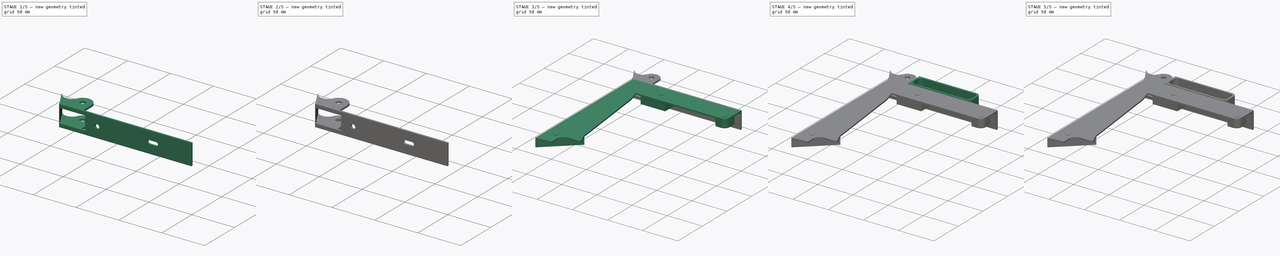
[diagram: build sequence overview — one tinted view per stage of 5, left to right]
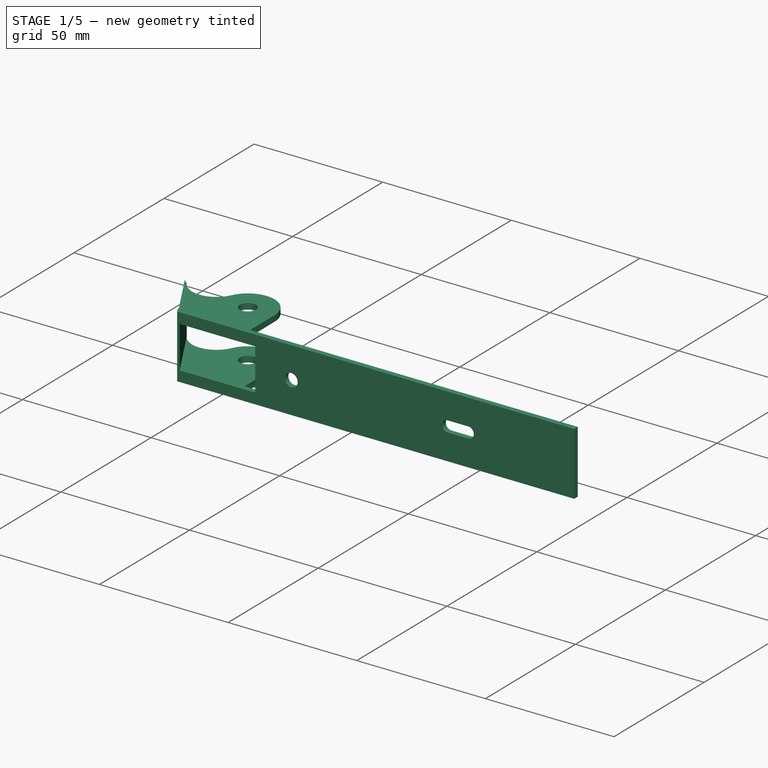
[diagram: stage 1 of 5 — iso view after this stage's code; geometry added in this stage tinted green]
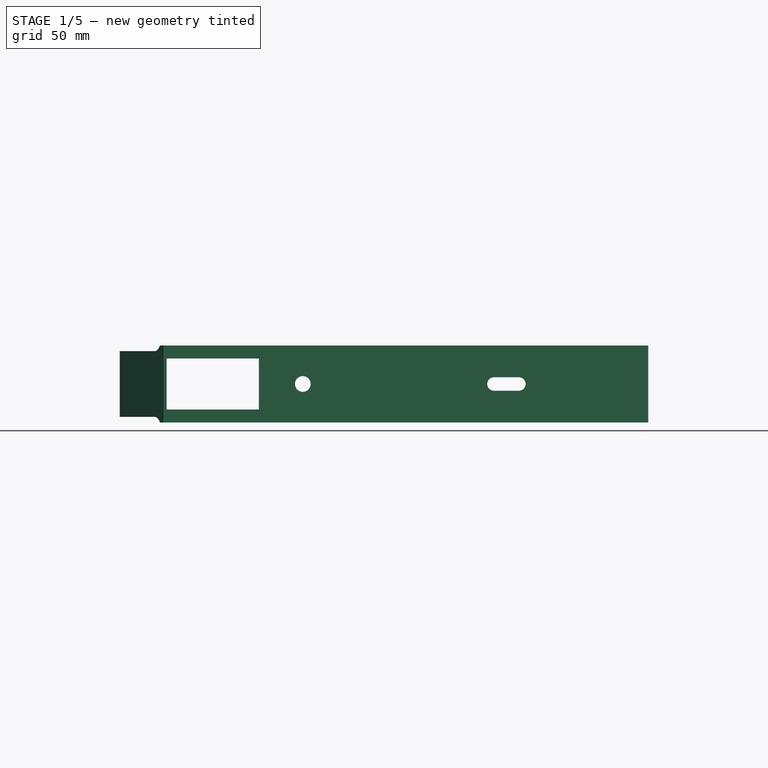
[diagram: stage 1 of 5 — front view after this stage's code; geometry added in this stage tinted green]
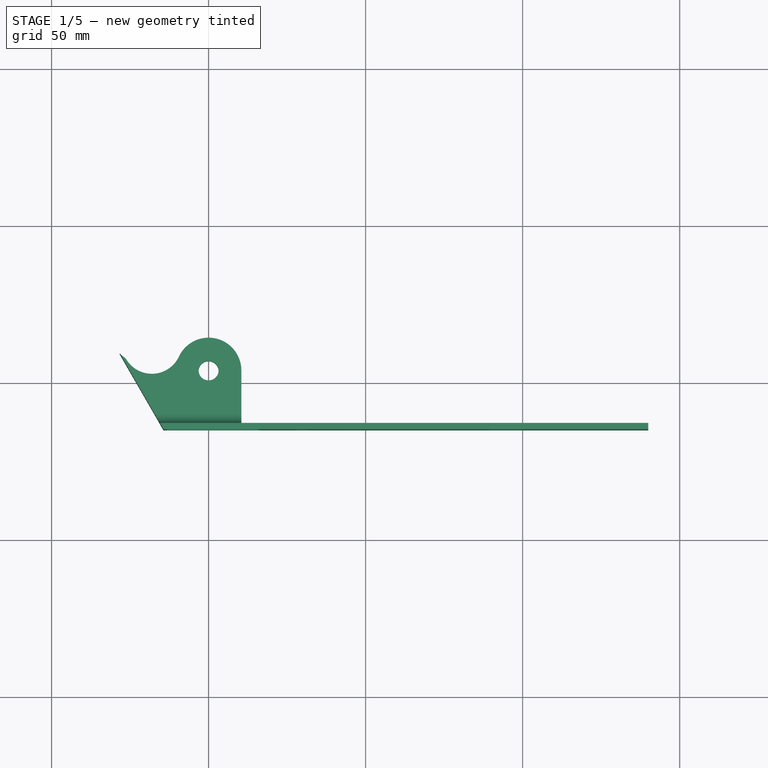
[diagram: stage 1 of 5 — top view after this stage's code; geometry added in this stage tinted green]
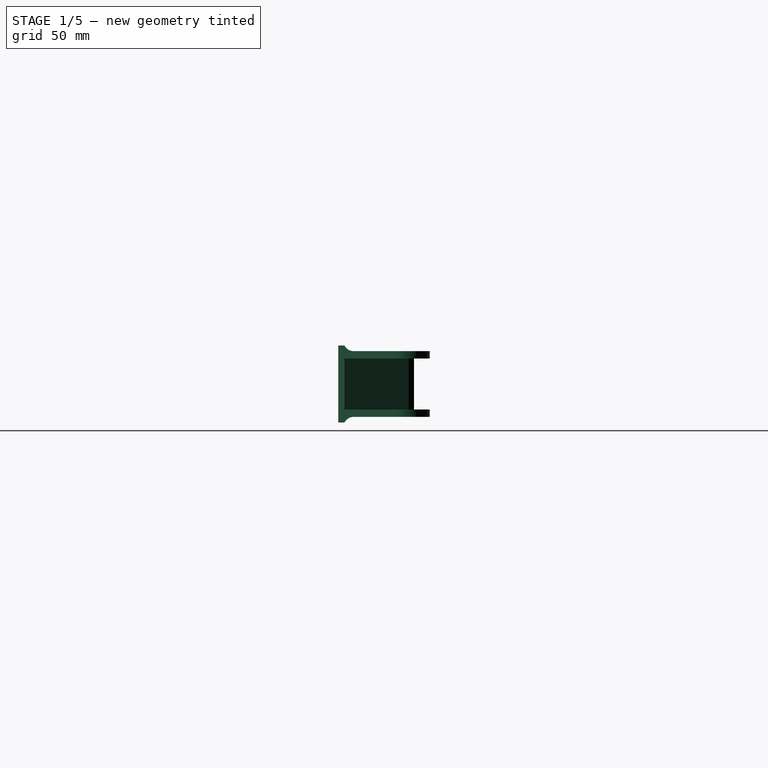
[diagram: stage 1 of 5 — right view after this stage's code; geometry added in this stage tinted green]
FCSTD DOCUMENT  (FreeCAD 0.20R29603 (Git))
Label: safetyLever
License: All rights reserved
LicenseURL: http://en.wikipedia.org/wiki/All_rights_reserved
objects: Sketcher::SketchObject×22, PartDesign::Pad×13, PartDesign::Pocket×7, PartDesign::Mirrored×5, PartDesign::Fillet×5, PartDesign::Body×4, Part::Part2DObjectPython×3, Spreadsheet::Sheet×1, PartDesign::Hole×1
note: 86 computed .brp shape members not serialized (recipe doc carries the construction recipe); baked Part::Feature solids carry a one-line shape summary decoded from their .brp

FEATURE [PartDesign::Body] Body001  label="bracket"
  Group = -> [Clone2D001,Sketch007,Pad004,Sketch006,Pad005,Mirrored001,Sketch008,Pad006,Sketch009,Pocket001,Mirrored002,Sketch010,Pad007,Sketch011,Pad008,Sketch013,Hole,Fillet002,Fillet003,Fillet004,Sketch017,Pocket004]
  Origin = -> Origin001
  Tip = -> Pocket004
FEATURE [Part::Part2DObjectPython] Clone2D002  label="masterSketch (2D)002"  # Draft 2D object (typed FeaturePython)
  Fuse = false
  Objects = -> [Sketch]
  Scale = (1,1,1)
FEATURE [Sketcher::SketchObject] Sketch019
  AttachmentOffset = pos=(0,0,13) rot=(0,0,1;0rad)
  ExternalGeometry = -> [Clone2D002]
  FullyConstrained = true
  MapMode = 5
  Placement = pos=(0,-13,-2.9e-15) rot=(1,0,0;1.5708rad)
  Support = -> [XZ_Plane003]
  expr: Constraints[17] = <<data>>.pin_thickness + 2
  expr: Constraints[7] = <<data>>.thickness
  sketch-geometry (9):
    g0: LineSegment StartX=16 StartY=12.25 StartZ=0 EndX=140 EndY=12.25 EndZ=0
    g1: LineSegment StartX=140 StartY=12.25 StartZ=0 EndX=140 EndY=-12.25 EndZ=0
    g2: LineSegment StartX=140 StartY=-12.25 StartZ=0 EndX=16 EndY=-12.25 EndZ=0
    g3: LineSegment StartX=16 StartY=-12.25 StartZ=0 EndX=16 EndY=12.25 EndZ=0
    g4: ArcOfCircle CenterX=90.8685 CenterY=-4.5e-15 CenterZ=0 NormalX=0 NormalY=0 NormalZ=1 AngleXU=0 Radius=2.143 StartAngle=1.5708 EndAngle=4.71239
    g5: ArcOfCircle CenterX=98.806 CenterY=-4.5e-15 CenterZ=0 NormalX=0 NormalY=0 NormalZ=1 AngleXU=0 Radius=2.143 StartAngle=4.71239 EndAngle=7.85398
    g6: LineSegment StartX=90.8685 StartY=-2.143 StartZ=0 EndX=98.806 EndY=-2.143 EndZ=0
    g7: LineSegment StartX=98.806 StartY=2.143 StartZ=0 EndX=90.8685 EndY=2.143 EndZ=0
    g8: Circle CenterX=30 CenterY=0 CenterZ=0 NormalX=0 NormalY=0 NormalZ=1 AngleXU=0 Radius=2.5
  constraints (22):
    c: Coincident(g0,g1)
    c: Coincident(g1,g2)
    c: Coincident(g2,g3)
    c: Coincident(g3,g0)
    c: Horizontal(g0)
    c: Horizontal(g2)
    c: Vertical(g3)
    c: DistanceY(g1,g1) = 24.5
    c: Symmetric(g1,g0,g-1)
    c: DistanceX(g0) = 16
    c: Tangent(g4,g6) = -1.5708
    c: Tangent(g6,g5) = -1.5708
    c: Tangent(g5,g7) = -1.5708
    c: Tangent(g7,g4) = -1.5708
    c: Equal(g4,g5)
    c: Coincident(g4,g-3)
    c: Coincident(g5,g-3)
    c: DistanceY(g5,g5) = 4.286
    c: PointOnObject(g8,g-1)
    c: Diameter(g8) = 5
    c: DistanceX(g0) = 140
    c: DistanceX(g8) = 30
FEATURE [PartDesign::Pad] Pad010  label="Pad_Bottom001"
  Direction = (0,-1,-2e-16)
  Length = 2
  Length2 = 10
  Placement = pos=(0,0,0) rot=(1,0,0;1.5708rad)
  Profile = -> Sketch019
  ReferenceAxis = -> Sketch019 [N_Axis]
  Type = 0
FEATURE [Sketcher::SketchObject] Sketch018
  AttachmentOffset = pos=(0,0,12.25) rot=(0,0,1;0rad)
  ExternalGeometry = -> [Clone2D002,Pad010]
  FullyConstrained = true
  MapMode = 5
  Placement = pos=(0,0,12.25) rot=(0,0,1;0rad)
  Support = -> [XY_Plane003]
  expr: .AttachmentOffset.Base.z = <<data>>.thickness / 2
  sketch-geometry (11):
    g0: LineSegment StartX=0 StartY=3.73 StartZ=0 EndX=11.43 EndY=3.73 EndZ=0
    g1: LineSegment StartX=0 StartY=3.73 StartZ=0 EndX=0 EndY=15.16 EndZ=0
    g2: Circle CenterX=0 CenterY=3.73 CenterZ=0 NormalX=0 NormalY=0 NormalZ=1 AngleXU=0 Radius=3.175
    g3: LineSegment StartX=16 StartY=-13 StartZ=0 EndX=10.43 EndY=-13 EndZ=0
    g4: LineSegment StartX=10.43 StartY=-13 StartZ=0 EndX=10.43 EndY=3.73 EndZ=0
    g5: ArcOfCircle CenterX=0 CenterY=3.73 CenterZ=0 NormalX=0 NormalY=0 NormalZ=1 AngleXU=0 Radius=10.43 StartAngle=0 EndAngle=2.70526
    g6: ArcOfCircle CenterX=-18.0627 CenterY=12.1528 CenterZ=0 NormalX=0 NormalY=0 NormalZ=1 AngleXU=0 Radius=9.5 StartAngle=3.66519 EndAngle=5.84685
    g7: LineSegment StartX=-26.29 StartY=7.40278 StartZ=0 EndX=-13.3557 EndY=-15 EndZ=0
    g8: LineSegment StartX=11.43 StartY=14.16 StartZ=0 EndX=0 EndY=14.16 EndZ=0
    g9: LineSegment StartX=-13.3557 StartY=-15 StartZ=0 EndX=16 EndY=-15 EndZ=0
    g10: LineSegment StartX=16 StartY=-15 StartZ=0 EndX=16 EndY=-13 EndZ=0
  constraints (31):
    c: Coincident(g0,g-4)
    c: PointOnObject(g0,g-3)
    c: Horizontal(g0)
    c: Coincident(g1,g0)
    c: PointOnObject(g1,g-2)
    c: Equal(g0,g1)
    c: Coincident(g2,g0)
    c: Equal(g-4,g2)
    c: Horizontal(g3)
    c: Coincident(g3,g4)
    c: Vertical(g4)
    c: Tangent(g4,g5) = -1.5708
    c: Tangent(g5,g6) = 1.5708
    c: PointOnObject(g8,g1)
    c: Horizontal(g8)
    c: Vertical(g8,g-3)
    c: Tangent(g8,g5)
    c: DistanceY(g8,g1) = 1
    c: Coincident(g2,g5)
    c: Coincident(g7,g9)
    c: Horizontal(g9)
    c: Coincident(g9,g10)
    c: Coincident(g10,g3)
    c: Vertical(g10)
    c: Angle(g5) = 2.70526
    c: Angle(g9,g7) = 2.0944
    c: Diameter(g6) = 19
    c: DistanceY(g3) = -13
    c: Diameter(g5) = 20.86
    c: Coincident(g9,g-6)
    c: Tangent(g6,g7) = -1.5708
FEATURE [PartDesign::Pad] Pad011  label="Pad_Outside001"
  BaseFeature = -> Pad010
  Direction = (0,0,1)
  Length = 4.1125
  Length2 = 10
  Placement = pos=(0,0,0) rot=(1,0,0;1.5708rad)
  Profile = -> Sketch018
  ReferenceAxis = -> Sketch018 [N_Axis]
  Reversed = true
  Type = 0
  expr: Length = (<<data>>.thickness - <<data>>.pivot_thickness - <<data>>.clearance) / 2
FEATURE [PartDesign::Mirrored] Mirrored003  label="Mirrored_Inside001"
  BaseFeature = -> Pad011
  MirrorPlane = -> XY_Plane003
  Originals = -> [Pad011]
  Placement = pos=(0,0,0) rot=(1,0,0;1.5708rad)
  Refine = true
FEATURE [Sketcher::SketchObject] Sketch020
  ExternalGeometry = -> [Mirrored003]
  FullyConstrained = true
  MapMode = 5
  Support = -> [XY_Plane003]
  sketch-geometry (4):
    g0: LineSegment StartX=-26.29 StartY=7.40278 StartZ=0 EndX=-28.29 EndY=9.13483 EndZ=0
    g1: LineSegment StartX=-28.29 StartY=9.13483 StartZ=0 EndX=-14.3557 EndY=-15 EndZ=0
    g2: LineSegment StartX=-14.3557 StartY=-15 StartZ=0 EndX=-13.3557 EndY=-15 EndZ=0
    g3: LineSegment StartX=-13.3557 StartY=-15 StartZ=0 EndX=-26.29 EndY=7.40278 EndZ=0
  constraints (10):
    c: Coincident(g-3,g0)
    c: Coincident(g0,g1)
    c: Coincident(g1,g2)
    c: Coincident(g2,g-3)
    c: Coincident(g2,g3)
    c: Coincident(g3,g0)
    c: Horizontal(g2)
    c: Parallel(g1,g3)
    c: DistanceX(g2,g2) = 1
    c: DistanceX(g0,g0) = 2
FEATURE [PartDesign::Pad] Pad012
  BaseFeature = -> Mirrored003
  Direction = (0,0,1)
  Length = 24.5
  Length2 = 10
  Midplane = true
  Placement = pos=(0,0,0) rot=(1,0,0;1.5708rad)
  Profile = -> Sketch020
  ReferenceAxis = -> Sketch020 [N_Axis]
  Type = 0
  expr: Length = <<data>>.thickness
FEATURE [Sketcher::SketchObject] Sketch021
  ExternalGeometry = -> [Pad012]
  FullyConstrained = true
  MapMode = 5
  Placement = pos=(0,0,0) rot=(0.57735,0.57735,0.57735;2.0944rad)
  Support = -> [YZ_Plane003]
  sketch-geometry (4):
    g0: ArcOfCircle CenterX=-10 CenterY=13.85 CenterZ=0 NormalX=0 NormalY=0 NormalZ=1 AngleXU=0 Radius=3.4 StartAngle=3.63155 EndAngle=4.71239
    g1: LineSegment StartX=-10 StartY=10.45 StartZ=0 EndX=14.16 EndY=10.45 EndZ=0
    g2: LineSegment StartX=14.16 StartY=12.25 StartZ=0 EndX=-13 EndY=12.25 EndZ=0
    g3: LineSegment StartX=14.16 StartY=12.25 StartZ=0 EndX=14.16 EndY=10.45 EndZ=0
  constraints (10):
    c: Horizontal(g1)
    c: Coincident(g2,g-3)
    c: Coincident(g2,g0)
    c: Coincident(g3,g2)
    c: Coincident(g3,g1)
    c: Vertical(g3)
    c: DistanceY(g3,g3) = 1.8
    c: Tangent(g1,g0) = -1.5708
    c: DistanceX(g0,g0) = 3
    c: Coincident(g0,g-4)
FEATURE [PartDesign::Pocket] Pocket005  label="thinnerPivotMount001"
  BaseFeature = -> Pad012
  Direction = (-1,2e-16,-3e-16)
  Length = 5
  Length2 = 5
  Midplane = true
  Placement = pos=(0,0,0) rot=(1,0,0;1.5708rad)
  Profile = -> Sketch021
  ReferenceAxis = -> Sketch021 [N_Axis]
  Type = 1
FEATURE [PartDesign::Mirrored] Mirrored004  label="thinnerPivotMounts001"
  BaseFeature = -> Pocket005
  MirrorPlane = -> Sketch021 [H_Axis]
  Originals = -> [Pocket005]
  Placement = pos=(0,0,0) rot=(1,0,0;1.5708rad)
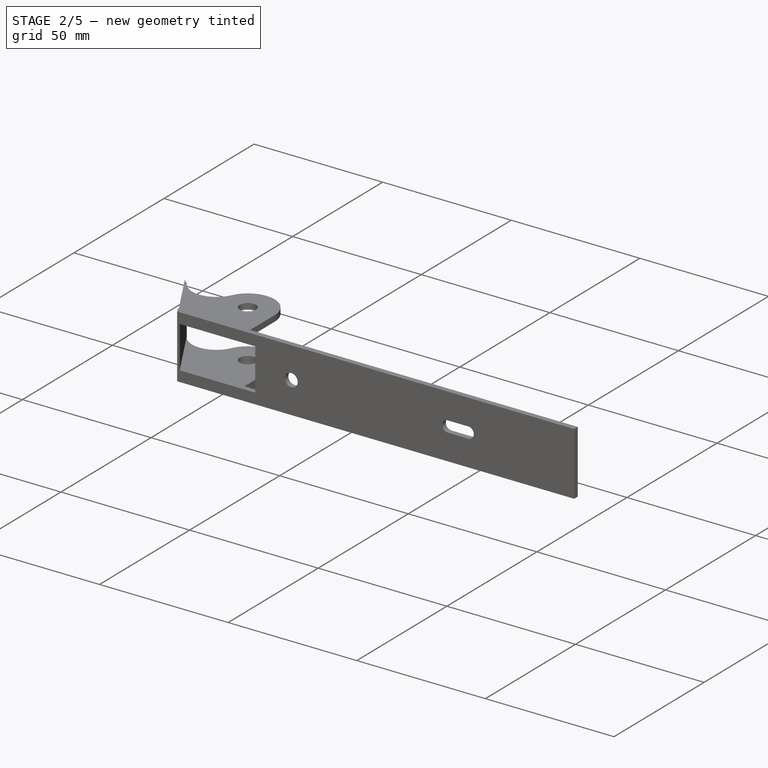
[diagram: stage 2 of 5 — iso view after this stage's code; geometry added in this stage tinted green]
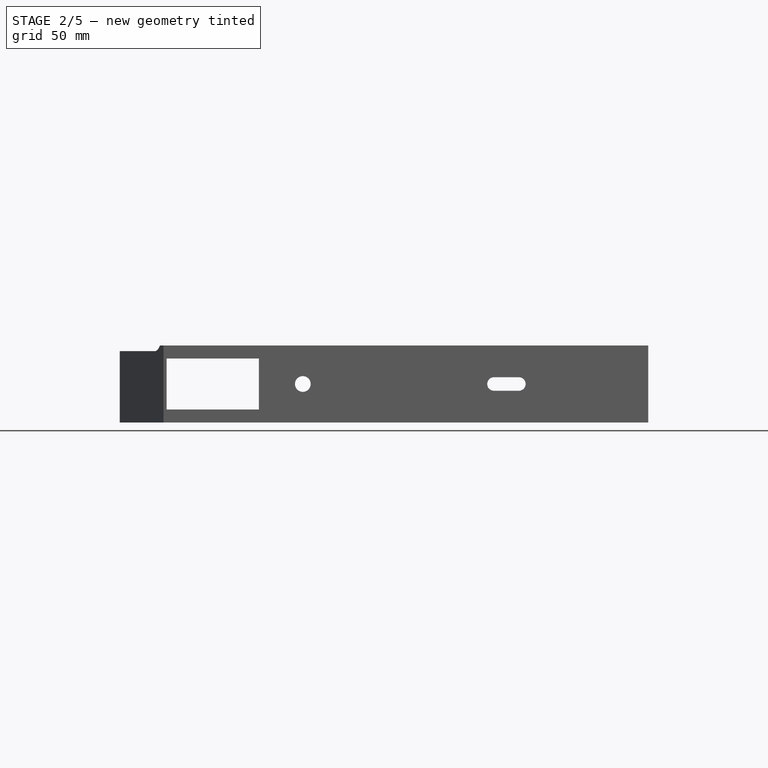
[diagram: stage 2 of 5 — front view after this stage's code; geometry added in this stage tinted green]
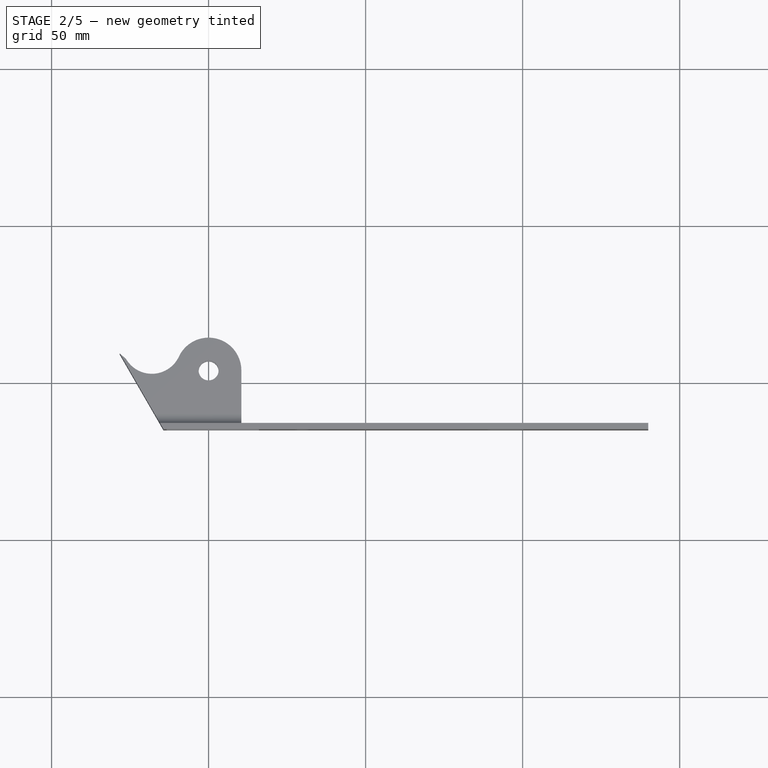
[diagram: stage 2 of 5 — top view after this stage's code; geometry added in this stage tinted green]
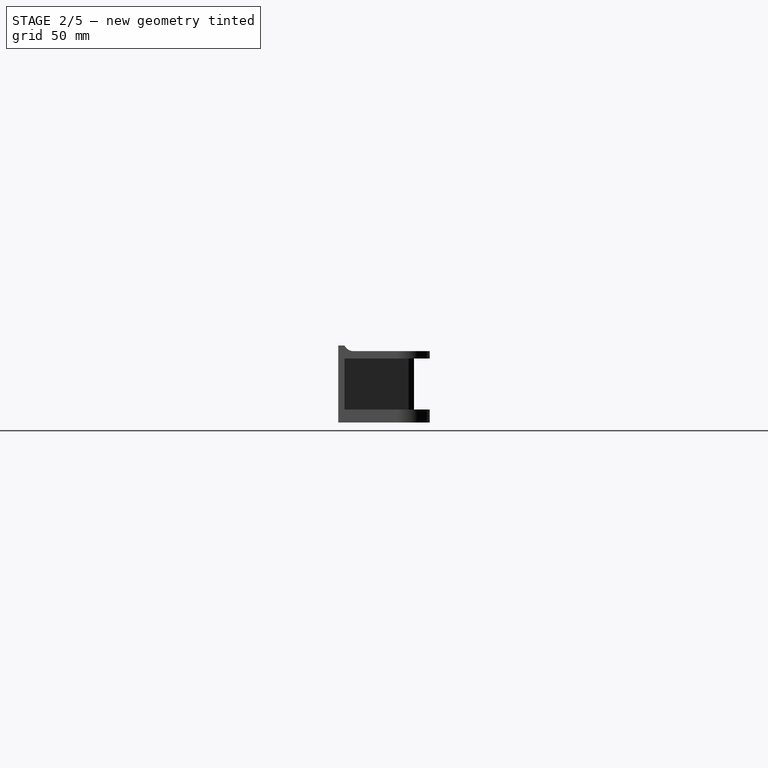
[diagram: stage 2 of 5 — right view after this stage's code; geometry added in this stage tinted green]
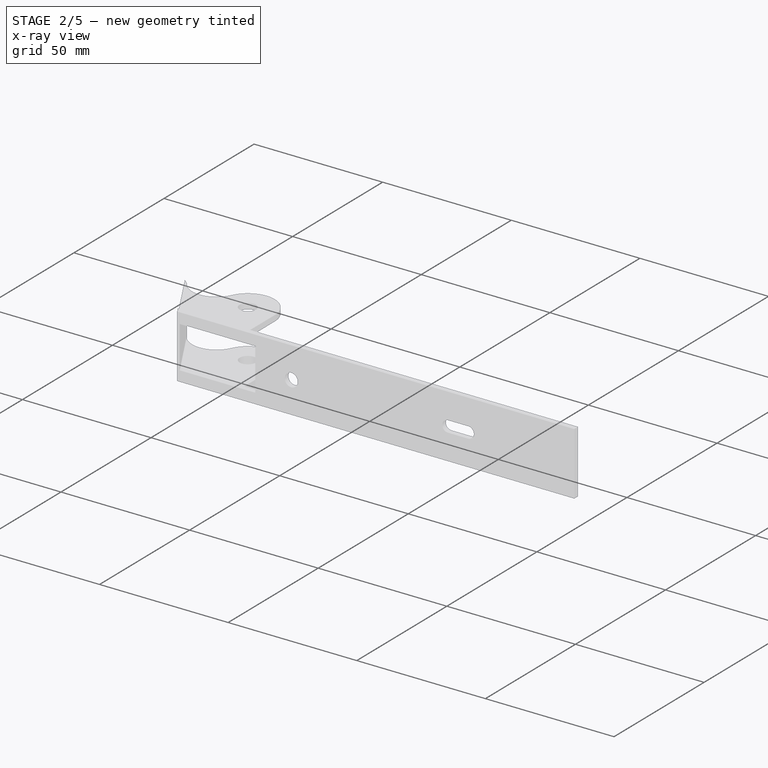
[diagram: stage 2 of 5 — x-ray composite at the iso view; earlier geometry ghosted, this stage's added geometry solid]
FEATURE [PartDesign::Body] Body  label="lever"
  Group = -> [Clone2D,Sketch001,Pad,Sketch002,Pad001,Sketch003,Pad002,Sketch004,Pad003,Mirrored,Sketch005,Pocket,Fillet,Fillet001]
  Origin = -> Origin
  Tip = -> Fillet001
FEATURE [Part::Part2DObjectPython] Clone2D001  label="masterSketch (2D)001"  # Draft 2D object (typed FeaturePython)
  Fuse = false
  Objects = -> [Sketch]
  Scale = (1,1,1)
FEATURE [Sketcher::SketchObject] Sketch007
  AttachmentOffset = pos=(0,0,13) rot=(0,0,1;0rad)
  ExternalGeometry = -> [Clone2D001]
  FullyConstrained = true
  MapMode = 5
  Placement = pos=(0,-13,-2.9e-15) rot=(1,0,0;1.5708rad)
  Support = -> [XZ_Plane001]
  expr: Constraints[17] = <<data>>.pin_thickness + 2
  expr: Constraints[7] = <<data>>.thickness
  sketch-geometry (9):
    g0: LineSegment StartX=16 StartY=12.25 StartZ=0 EndX=140 EndY=12.25 EndZ=0
    g1: LineSegment StartX=140 StartY=12.25 StartZ=0 EndX=140 EndY=-12.25 EndZ=0
    g2: LineSegment StartX=140 StartY=-12.25 StartZ=0 EndX=16 EndY=-12.25 EndZ=0
    g3: LineSegment StartX=16 StartY=-12.25 StartZ=0 EndX=16 EndY=12.25 EndZ=0
    g4: ArcOfCircle CenterX=90.8685 CenterY=-4.5e-15 CenterZ=0 NormalX=0 NormalY=0 NormalZ=1 AngleXU=0 Radius=2.143 StartAngle=1.5708 EndAngle=4.71239
    g5: ArcOfCircle CenterX=98.806 CenterY=-4.5e-15 CenterZ=0 NormalX=0 NormalY=0 NormalZ=1 AngleXU=0 Radius=2.143 StartAngle=4.71239 EndAngle=7.85398
    g6: LineSegment StartX=90.8685 StartY=-2.143 StartZ=0 EndX=98.806 EndY=-2.143 EndZ=0
    g7: LineSegment StartX=98.806 StartY=2.143 StartZ=0 EndX=90.8685 EndY=2.143 EndZ=0
    g8: Circle CenterX=30 CenterY=0 CenterZ=0 NormalX=0 NormalY=0 NormalZ=1 AngleXU=0 Radius=2.5
  constraints (22):
    c: Coincident(g0,g1)
    c: Coincident(g1,g2)
    c: Coincident(g2,g3)
    c: Coincident(g3,g0)
    c: Horizontal(g0)
    c: Horizontal(g2)
    c: Vertical(g3)
    c: DistanceY(g1,g1) = 24.5
    c: Symmetric(g1,g0,g-1)
    c: DistanceX(g0) = 16
    c: Tangent(g4,g6) = -1.5708
    c: Tangent(g6,g5) = -1.5708
    c: Tangent(g5,g7) = -1.5708
    c: Tangent(g7,g4) = -1.5708
    c: Equal(g4,g5)
    c: Coincident(g4,g-3)
    c: Coincident(g5,g-3)
    c: DistanceY(g5,g5) = 4.286
    c: PointOnObject(g8,g-1)
    c: Diameter(g8) = 5
    c: DistanceX(g0) = 140
    c: DistanceX(g8) = 30
FEATURE [PartDesign::Pad] Pad004  label="Pad_Bottom"
  Direction = (0,-1,-2e-16)
  Length = 2
  Length2 = 10
  Placement = pos=(0,0,0) rot=(1,0,0;1.5708rad)
  Profile = -> Sketch007
  ReferenceAxis = -> Sketch007 [N_Axis]
  Type = 0
FEATURE [Sketcher::SketchObject] Sketch006
  AttachmentOffset = pos=(0,0,12.25) rot=(0,0,1;0rad)
  ExternalGeometry = -> [Clone2D001,Pad004]
  FullyConstrained = true
  MapMode = 5
  Placement = pos=(0,0,12.25) rot=(0,0,1;0rad)
  Support = -> [XY_Plane001]
  expr: .AttachmentOffset.Base.z = <<data>>.thickness / 2
  sketch-geometry (11):
    g0: LineSegment StartX=0 StartY=3.73 StartZ=0 EndX=11.43 EndY=3.73 EndZ=0
    g1: LineSegment StartX=0 StartY=3.73 StartZ=0 EndX=0 EndY=15.16 EndZ=0
    g2: Circle CenterX=0 CenterY=3.73 CenterZ=0 NormalX=0 NormalY=0 NormalZ=1 AngleXU=0 Radius=3.175
    g3: LineSegment StartX=16 StartY=-13 StartZ=0 EndX=10.43 EndY=-13 EndZ=0
    g4: LineSegment StartX=10.43 StartY=-13 StartZ=0 EndX=10.43 EndY=3.73 EndZ=0
    g5: ArcOfCircle CenterX=0 CenterY=3.73 CenterZ=0 NormalX=0 NormalY=0 NormalZ=1 AngleXU=0 Radius=10.43 StartAngle=0 EndAngle=2.70526
    g6: ArcOfCircle CenterX=-18.0627 CenterY=12.1528 CenterZ=0 NormalX=0 NormalY=0 NormalZ=1 AngleXU=0 Radius=9.5 StartAngle=3.66519 EndAngle=5.84685
    g7: LineSegment StartX=-26.29 StartY=7.40278 StartZ=0 EndX=-13.3557 EndY=-15 EndZ=0
    g8: LineSegment StartX=11.43 StartY=14.16 StartZ=0 EndX=0 EndY=14.16 EndZ=0
    g9: LineSegment StartX=-13.3557 StartY=-15 StartZ=0 EndX=16 EndY=-15 EndZ=0
    g10: LineSegment StartX=16 StartY=-15 StartZ=0 EndX=16 EndY=-13 EndZ=0
  constraints (31):
    c: Coincident(g0,g-4)
    c: PointOnObject(g0,g-3)
    c: Horizontal(g0)
    c: Coincident(g1,g0)
    c: PointOnObject(g1,g-2)
    c: Equal(g0,g1)
    c: Coincident(g2,g0)
    c: Equal(g-4,g2)
    c: Horizontal(g3)
    c: Coincident(g3,g4)
    c: Vertical(g4)
    c: Tangent(g4,g5) = -1.5708
    c: Tangent(g5,g6) = 1.5708
    c: PointOnObject(g8,g1)
    c: Horizontal(g8)
    c: Vertical(g8,g-3)
    c: Tangent(g8,g5)
    c: DistanceY(g8,g1) = 1
    c: Coincident(g2,g5)
    c: Coincident(g7,g9)
    c: Horizontal(g9)
    c: Coincident(g9,g10)
    c: Coincident(g10,g3)
    c: Vertical(g10)
    c: Angle(g5) = 2.70526
    c: Angle(g9,g7) = 2.0944
    c: Diameter(g6) = 19
    c: DistanceY(g3) = -13
    c: Diameter(g5) = 20.86
    c: Coincident(g9,g-6)
    c: Tangent(g6,g7) = -1.5708
FEATURE [PartDesign::Pad] Pad005  label="Pad_Outside"
  BaseFeature = -> Pad004
  Direction = (0,0,1)
  Length = 4.1125
  Length2 = 10
  Placement = pos=(0,0,0) rot=(1,0,0;1.5708rad)
  Profile = -> Sketch006
  ReferenceAxis = -> Sketch006 [N_Axis]
  Reversed = true
  Type = 0
  expr: Length = (<<data>>.thickness - <<data>>.pivot_thickness - <<data>>.clearance) / 2
FEATURE [PartDesign::Mirrored] Mirrored001  label="Mirrored_Inside"
  BaseFeature = -> Pad005
  MirrorPlane = -> XY_Plane001
  Originals = -> [Pad005]
  Placement = pos=(0,0,0) rot=(1,0,0;1.5708rad)
  Refine = true
FEATURE [Sketcher::SketchObject] Sketch008
  ExternalGeometry = -> [Mirrored001]
  FullyConstrained = true
  MapMode = 5
  Support = -> [XY_Plane001]
  sketch-geometry (4):
    g0: LineSegment StartX=-26.29 StartY=7.40278 StartZ=0 EndX=-28.29 EndY=9.13483 EndZ=0
    g1: LineSegment StartX=-28.29 StartY=9.13483 StartZ=0 EndX=-14.3557 EndY=-15 EndZ=0
    g2: LineSegment StartX=-14.3557 StartY=-15 StartZ=0 EndX=-13.3557 EndY=-15 EndZ=0
    g3: LineSegment StartX=-13.3557 StartY=-15 StartZ=0 EndX=-26.29 EndY=7.40278 EndZ=0
  constraints (10):
    c: Coincident(g-3,g0)
    c: Coincident(g0,g1)
    c: Coincident(g1,g2)
    c: Coincident(g2,g-3)
    c: Coincident(g2,g3)
    c: Coincident(g3,g0)
    c: Horizontal(g2)
    c: Parallel(g1,g3)
    c: DistanceX(g2,g2) = 1
    c: DistanceX(g0,g0) = 2
FEATURE [PartDesign::Pad] Pad006
  BaseFeature = -> Mirrored001
  Direction = (0,0,1)
  Length = 24.5
  Length2 = 10
  Midplane = true
  Placement = pos=(0,0,0) rot=(1,0,0;1.5708rad)
  Profile = -> Sketch008
  ReferenceAxis = -> Sketch008 [N_Axis]
  Type = 0
  expr: Length = <<data>>.thickness
FEATURE [Sketcher::SketchObject] Sketch009
  ExternalGeometry = -> [Pad006]
  FullyConstrained = true
  MapMode = 5
  Placement = pos=(0,0,0) rot=(0.57735,0.57735,0.57735;2.0944rad)
  Support = -> [YZ_Plane001]
  sketch-geometry (4):
    g0: ArcOfCircle CenterX=-10 CenterY=13.85 CenterZ=0 NormalX=0 NormalY=0 NormalZ=1 AngleXU=0 Radius=3.4 StartAngle=3.63155 EndAngle=4.71239
    g1: LineSegment StartX=-10 StartY=10.45 StartZ=0 EndX=14.16 EndY=10.45 EndZ=0
    g2: LineSegment StartX=14.16 StartY=12.25 StartZ=0 EndX=-13 EndY=12.25 EndZ=0
    g3: LineSegment StartX=14.16 StartY=12.25 StartZ=0 EndX=14.16 EndY=10.45 EndZ=0
  constraints (10):
    c: Horizontal(g1)
    c: Coincident(g2,g-3)
    c: Coincident(g2,g0)
    c: Coincident(g3,g2)
    c: Coincident(g3,g1)
    c: Vertical(g3)
    c: DistanceY(g3,g3) = 1.8
    c: Tangent(g1,g0) = -1.5708
    c: DistanceX(g0,g0) = 3
    c: Coincident(g0,g-4)
FEATURE [PartDesign::Pocket] Pocket001  label="thinnerPivotMount"
  BaseFeature = -> Pad006
  Direction = (-1,2e-16,-3e-16)
  Length = 5
  Length2 = 5
  Midplane = true
  Placement = pos=(0,0,0) rot=(1,0,0;1.5708rad)
  Profile = -> Sketch009
  ReferenceAxis = -> Sketch009 [N_Axis]
  Type = 1
FEATURE [Sketcher::SketchObject] Sketch022
  ExternalGeometry = -> [Mirrored004]
  FullyConstrained = true
  MapMode = 5
  Placement = pos=(0,0,0) rot=(1,0,0;1.5708rad)
  Support = -> [XZ_Plane003]
  sketch-geometry (4):
    g0: LineSegment StartX=-13.3557 StartY=8.1375 StartZ=0 EndX=-16.3557 EndY=8.1375 EndZ=0
    g1: LineSegment StartX=-16.3557 StartY=8.1375 StartZ=0 EndX=-16.3557 EndY=-8.1375 EndZ=0
    g2: LineSegment StartX=-16.3557 StartY=-8.1375 StartZ=0 EndX=-13.3557 EndY=-8.1375 EndZ=0
    g3: LineSegment StartX=-13.3557 StartY=-8.1375 StartZ=0 EndX=-13.3557 EndY=8.1375 EndZ=0
  constraints (10):
    c: Coincident(g0,g1)
    c: Coincident(g1,g2)
    c: Coincident(g2,g3)
    c: Coincident(g3,g0)
    c: Horizontal(g0)
    c: Horizontal(g2)
    c: Vertical(g1)
    c: Coincident(g0,g-3)
    c: Coincident(g2,g-3)
    c: DistanceX(g2,g2) = 3
FEATURE [PartDesign::Pocket] Pocket006
  BaseFeature = -> Mirrored004
  Direction = (0,1,2e-16)
  Length = 5
  Length2 = 5
  Midplane = true
  Placement = pos=(0,0,0) rot=(1,0,0;1.5708rad)
  Profile = -> Sketch022
  ReferenceAxis = -> Sketch022 [N_Axis]
  Type = 1
FEATURE [PartDesign::Body] Body003  label="bracketSingle"
  Group = -> [Clone2D002,Sketch019,Pad010,Sketch018,Pad011,Mirrored003,Sketch020,Pad012,Sketch021,Pocket005,Mirrored004,Sketch022,Pocket006]
  Origin = -> Origin003
  Tip = -> Pocket006
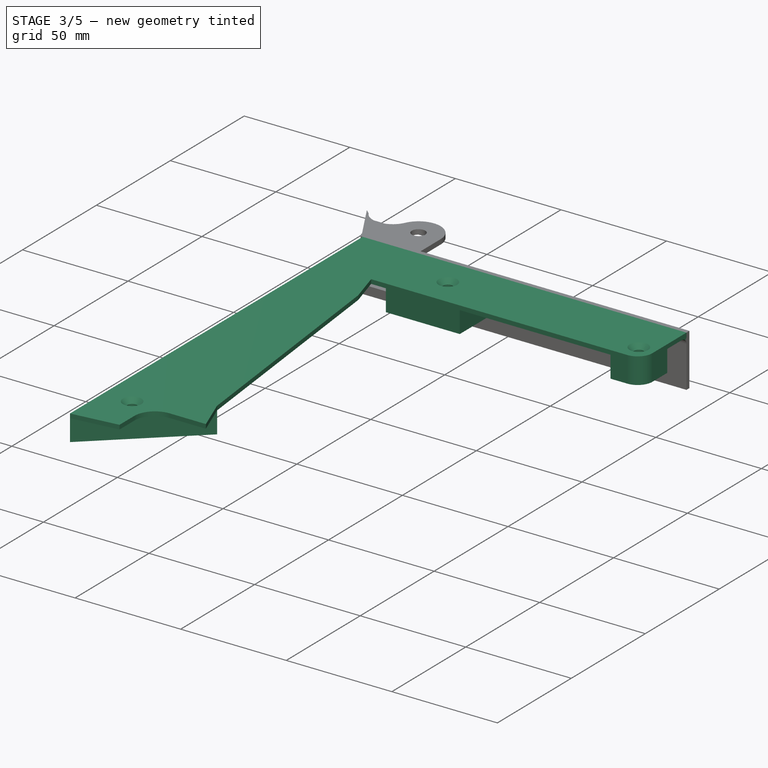
[diagram: stage 3 of 5 — iso view after this stage's code; geometry added in this stage tinted green]
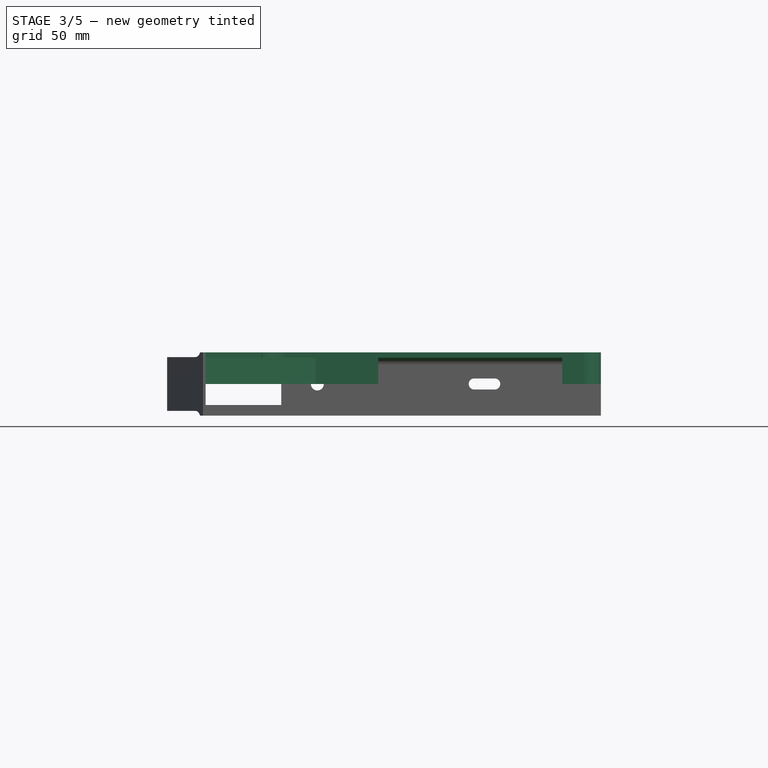
[diagram: stage 3 of 5 — front view after this stage's code; geometry added in this stage tinted green]
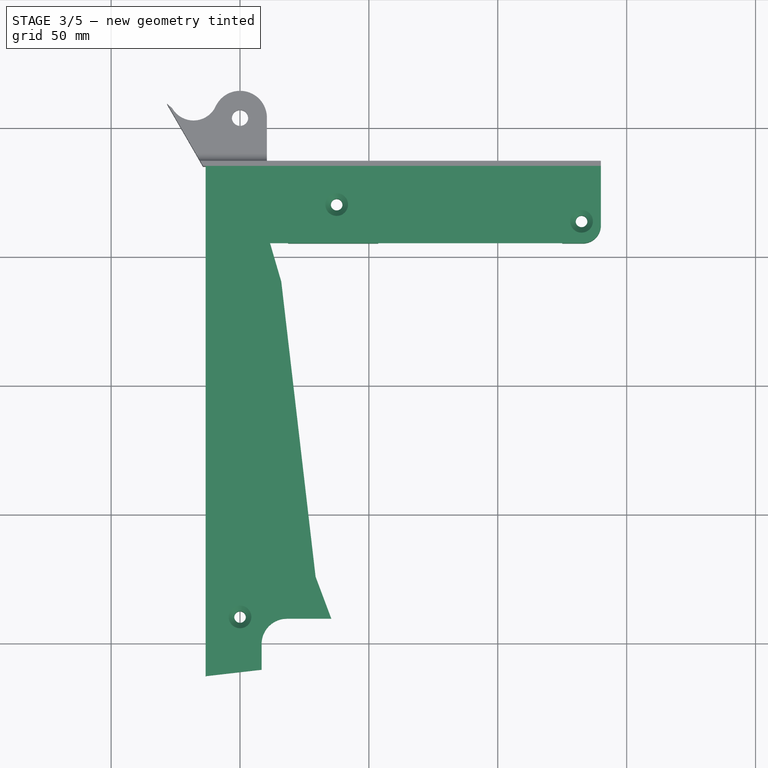
[diagram: stage 3 of 5 — top view after this stage's code; geometry added in this stage tinted green]
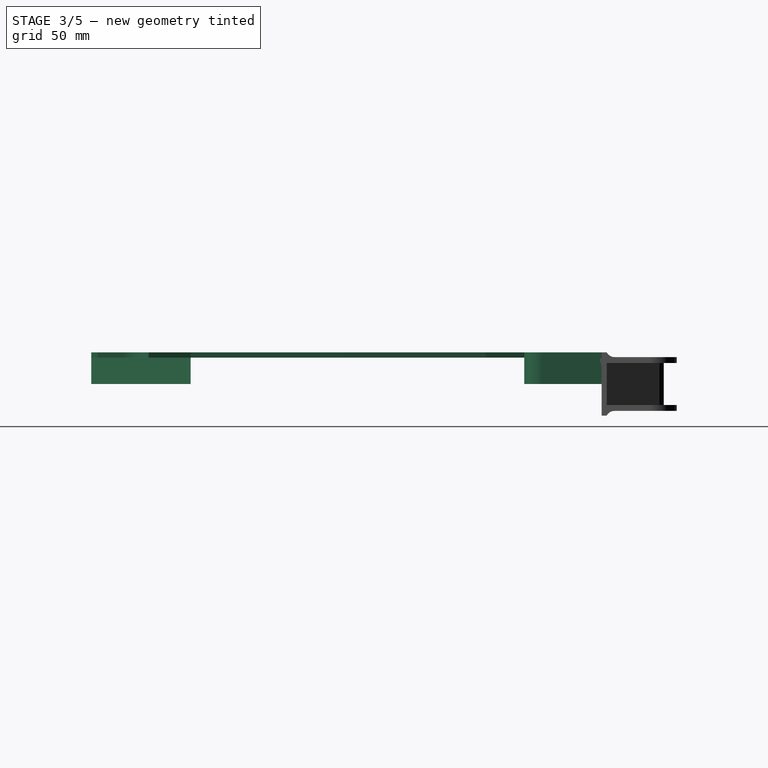
[diagram: stage 3 of 5 — right view after this stage's code; geometry added in this stage tinted green]
FEATURE [PartDesign::Mirrored] Mirrored002  label="thinnerPivotMounts"
  BaseFeature = -> Pocket001
  MirrorPlane = -> Sketch009 [H_Axis]
  Originals = -> [Pocket001]
  Placement = pos=(0,0,0) rot=(1,0,0;1.5708rad)
FEATURE [Sketcher::SketchObject] Sketch010
  AttachmentOffset = pos=(0,0,12.25) rot=(0,0,1;0rad)
  ExternalGeometry = -> [Mirrored002]
  FullyConstrained = false
  MapMode = 5
  Placement = pos=(0,0,12.25) rot=(0,0,1;0rad)
  Support = -> [XY_Plane001]
  expr: .AttachmentOffset.Base.z = <<data>>.thickness / 2
  sketch-geometry (11):
    g0: LineSegment StartX=-13.3557 StartY=-15 StartZ=0 EndX=140 EndY=-15 EndZ=0
    g1: LineSegment StartX=140 StartY=-15 StartZ=0 EndX=140 EndY=-45 EndZ=0
    g2: LineSegment StartX=-13.3557 StartY=-213 StartZ=0 EndX=-13.3557 EndY=-15 EndZ=0
    g3: LineSegment StartX=-13.3557 StartY=-213 StartZ=0 EndX=8.37139 EndY=-210.497 EndZ=0
    g4: LineSegment StartX=8.37139 StartY=-210.497 StartZ=0 EndX=8.37139 EndY=-200.512 EndZ=0
    g5: ArcOfCircle CenterX=18.1743 CenterY=-200.512 CenterZ=0 NormalX=0 NormalY=0 NormalZ=1 AngleXU=0 Radius=9.80291 StartAngle=1.5708 EndAngle=3.14159
    g6: LineSegment StartX=18.1743 StartY=-190.709 StartZ=0 EndX=35.4191 EndY=-190.709 EndZ=0
    g7: LineSegment StartX=35.4191 StartY=-190.709 StartZ=0 EndX=29.3144 EndY=-174.421 EndZ=0
    g8: LineSegment StartX=11.6443 StartY=-45 StartZ=0 EndX=140 EndY=-45 EndZ=0
    g9: LineSegment StartX=29.3144 StartY=-174.421 StartZ=0 EndX=16.0078 EndY=-59.9292 EndZ=0
    g10: LineSegment StartX=16.0078 StartY=-59.9292 StartZ=0 EndX=11.6443 EndY=-45 EndZ=0
  constraints (22):
    c: Coincident(g0,g1)
    c: Coincident(g2,g0)
    c: Horizontal(g0)
    c: Vertical(g1)
    c: Vertical(g2)
    c: Coincident(g0,g-3)
    c: Vertical(g1,g-3)
    c: DistanceY(g1,g1) = 30
    c: DistanceY(g2,g2) = 198
    c: Coincident(g2,g3)
    c: Coincident(g3,g4)
    c: Tangent(g4,g5) = 1.5708
    c: Tangent(g5,g6) = 1.5708
    c: Coincident(g6,g7)
    c: Coincident(g7,g9)
    c: Coincident(g10,g8)
    c: Coincident(g8,g1)
    c: Horizontal(g8)
    c: DistanceX(g0,g10) = 25
    c: Horizontal(g6)
    c: Vertical(g4)
    c: Coincident(g9,g10)
FEATURE [PartDesign::Pad] Pad007  label="outsideShell"
  BaseFeature = -> Mirrored002
  Direction = (0,0,1)
  Length = 2
  Length2 = 10
  Placement = pos=(0,0,0) rot=(1,0,0;1.5708rad)
  Profile = -> Sketch010
  ReferenceAxis = -> Sketch010 [N_Axis]
  Reversed = true
  Type = 0
FEATURE [Sketcher::SketchObject] Sketch011
  ExternalGeometry = -> [Pad007]
  FullyConstrained = true
  MapMode = 5
  Placement = pos=(0,0,12.25) rot=(0,0,1;3.14159rad)
  Support = -> [Pad007]
  sketch-geometry (11):
    g0: LineSegment StartX=-18.6443 StartY=15 StartZ=0 EndX=-53.6443 EndY=15 EndZ=0
    g1: LineSegment StartX=-53.6443 StartY=15 StartZ=0 EndX=-53.6443 EndY=45 EndZ=0
    g2: LineSegment StartX=-53.6443 StartY=45 StartZ=0 EndX=-18.6443 EndY=45 EndZ=0
    g3: LineSegment StartX=-18.6443 StartY=45 StartZ=0 EndX=-18.6443 EndY=15 EndZ=0
    g4: LineSegment StartX=-125 StartY=28 StartZ=0 EndX=-140 EndY=28 EndZ=0
    g5: LineSegment StartX=-140 StartY=28 StartZ=0 EndX=-140 EndY=45 EndZ=0
    g6: LineSegment StartX=-140 StartY=45 StartZ=0 EndX=-125 EndY=45 EndZ=0
    g7: LineSegment StartX=-125 StartY=45 StartZ=0 EndX=-125 EndY=28 EndZ=0
    g8: LineSegment StartX=13.3557 StartY=174.421 StartZ=0 EndX=-29.3144 EndY=174.421 EndZ=0
    g9: LineSegment StartX=-29.3144 StartY=174.421 StartZ=0 EndX=13.3557 EndY=213 EndZ=0
    g10: LineSegment StartX=13.3557 StartY=213 StartZ=0 EndX=13.3557 EndY=174.421 EndZ=0
  constraints (30):
    c: Coincident(g0,g1)
    c: Coincident(g1,g2)
    c: Coincident(g2,g3)
    c: Coincident(g3,g0)
    c: Horizontal(g0)
    c: Horizontal(g2)
    c: Vertical(g1)
    c: Vertical(g3)
    c: PointOnObject(g1,g-5)
    c: Coincident(g4,g5)
    c: Coincident(g5,g6)
    c: Coincident(g6,g7)
    c: Coincident(g7,g4)
    c: Horizontal(g4)
    c: Horizontal(g6)
    c: Vertical(g5)
    c: Vertical(g7)
    c: Coincident(g5,g-5)
    c: DistanceX(g4,g4) = 15
    c: DistanceX(g0,g-4) = 32
    c: DistanceX(g2,g2) = 35
    c: DistanceY(g7,g7) = 17
    c: PointOnObject(g0,g-4)
    c: PointOnObject(g8,g-6)
    c: Coincident(g8,g-3)
    c: Horizontal(g8)
    c: Coincident(g8,g9)
    c: Coincident(g9,g-6)
    c: Coincident(g9,g10)
    c: Coincident(g10,g8)
FEATURE [PartDesign::Pad] Pad008  label="stiffener"
  BaseFeature = -> Pad007
  Direction = (0,0,1)
  Length = 12.25
  Length2 = 10
  Placement = pos=(0,0,0) rot=(1,0,0;1.5708rad)
  Profile = -> Sketch011
  ReferenceAxis = -> Sketch011 [N_Axis]
  Reversed = true
  Type = 0
  expr: Length = <<data>>.thickness / 2
FEATURE [Sketcher::SketchObject] Sketch013
  AttachmentOffset = pos=(0,0,12.25) rot=(0,0,1;0rad)
  FullyConstrained = true
  MapMode = 5
  Placement = pos=(0,0,12.25) rot=(0,0,1;0rad)
  Support = -> [XY_Plane001]
  expr: .AttachmentOffset.Base.z = <<data>>.thickness / 2
  sketch-geometry (4):
    g0: Circle CenterX=0 CenterY=-190 CenterZ=0 NormalX=0 NormalY=0 NormalZ=1 AngleXU=0 Radius=4.5
    g1: Circle CenterX=37.5 CenterY=-30 CenterZ=0 NormalX=0 NormalY=0 NormalZ=1 AngleXU=0 Radius=4.5
    g2: Circle CenterX=132.5 CenterY=-36.5 CenterZ=0 NormalX=0 NormalY=0 NormalZ=1 AngleXU=0 Radius=4.5
    g3: LineSegment StartX=37.5 StartY=-30 StartZ=0 EndX=132.5 EndY=-36.5 EndZ=0
  constraints (11):
    c: PointOnObject(g0,g-2)
    c: Coincident(g3,g1)
    c: Coincident(g3,g2)
    c: Equal(g1,g2)
    c: Equal(g1,g0)
    c: Diameter(g1) = 9
    c: DistanceX(g3,g3) = 95
    c: DistanceY(g0) = -190
    c: DistanceX(g2) = 132.5
    c: DistanceY(g2) = -36.5
    c: DistanceY(g1) = -30
FEATURE [PartDesign::Hole] Hole
  BaseFeature = -> Pad008
  CustomThreadClearance = 0
  Depth = 568.991
  DepthType = 1
  Diameter = 4.5
  DrillForDepth = false
  DrillPoint = 1
  DrillPointAngle = 118
  HoleCutCountersinkAngle = 90
  HoleCutCustomValues = false
  HoleCutDepth = 0.5
  HoleCutDiameter = 8.8
  HoleCutType = 2
  ModelThread = false
  Placement = pos=(0,0,0) rot=(1,0,0;1.5708rad)
  Profile = -> Sketch013
  Tapered = false
  TaperedAngle = 90
  ThreadClass = 0
  ThreadDepth = 568.991
  ThreadDepthType = 0
  ThreadDirection = 0
  ThreadFit = 0
  ThreadSize = 11
  ThreadType = 1
  Threaded = false
  UseCustomThreadClearance = false
FEATURE [PartDesign::Fillet] Fillet002
  Base = -> Hole [Edge35]
  BaseFeature = -> Hole
  Placement = pos=(0,0,0) rot=(1,0,0;1.5708rad)
  Radius = 3
  SupportTransform = false
  UseAllEdges = false
FEATURE [PartDesign::Fillet] Fillet003
  Base = -> Fillet002 [Edge16]
  BaseFeature = -> Fillet002
  Placement = pos=(0,0,0) rot=(1,0,0;1.5708rad)
  Radius = 2
  SupportTransform = false
  UseAllEdges = false
FEATURE [PartDesign::Fillet] Fillet004
  Base = -> Fillet003 [Edge161,Edge186]
  BaseFeature = -> Fillet003
  Placement = pos=(0,0,0) rot=(1,0,0;1.5708rad)
  Radius = 7
  SupportTransform = false
  UseAllEdges = false
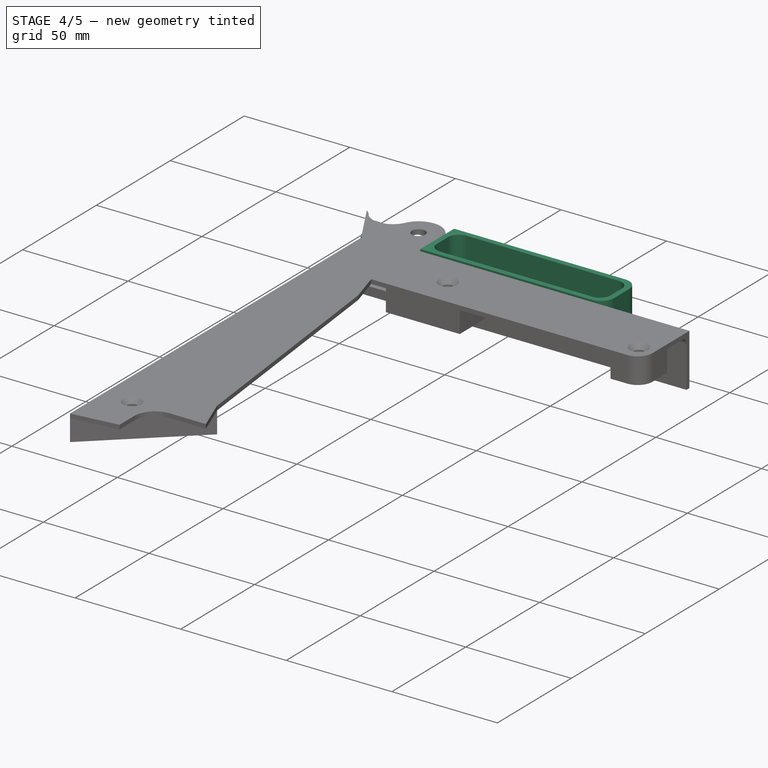
[diagram: stage 4 of 5 — iso view after this stage's code; geometry added in this stage tinted green]
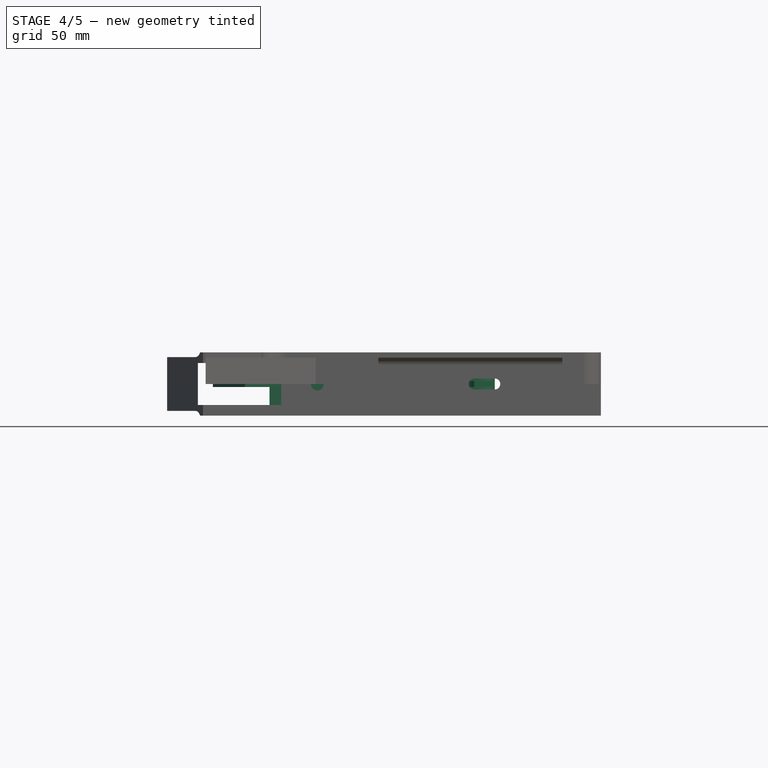
[diagram: stage 4 of 5 — front view after this stage's code; geometry added in this stage tinted green]
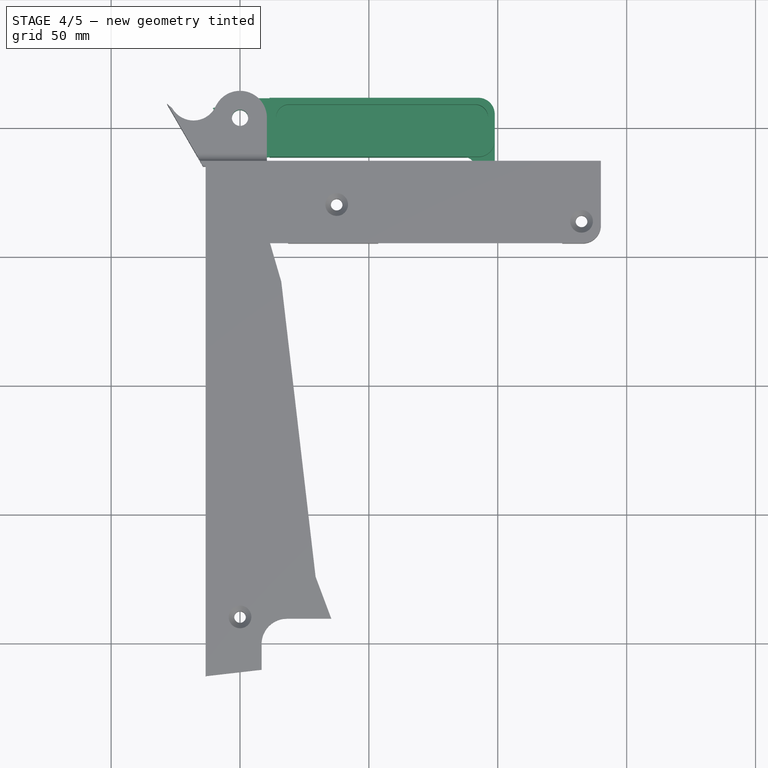
[diagram: stage 4 of 5 — top view after this stage's code; geometry added in this stage tinted green]
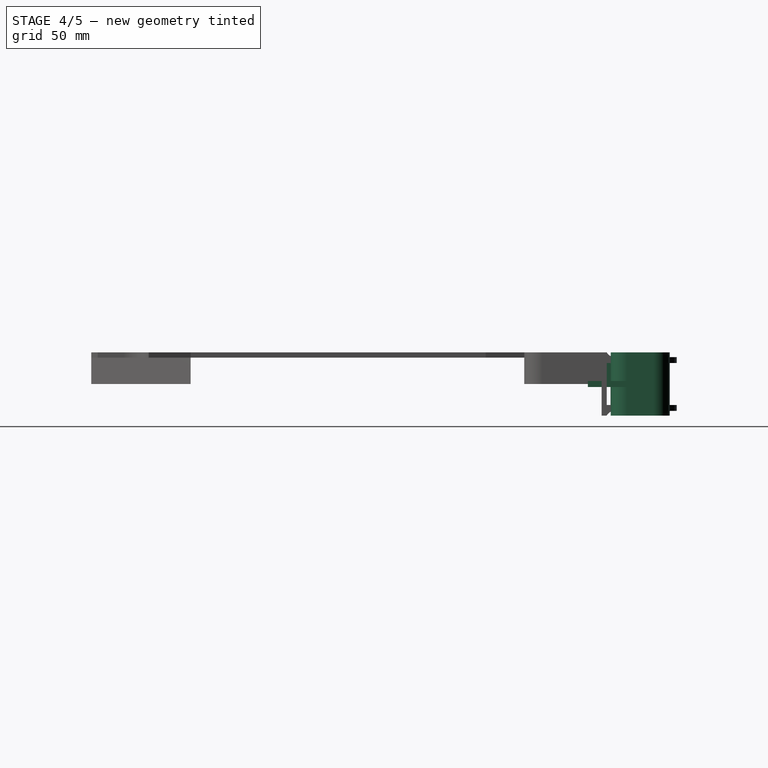
[diagram: stage 4 of 5 — right view after this stage's code; geometry added in this stage tinted green]
FEATURE [Sketcher::SketchObject] Sketch  label="masterSketch"
  FullyConstrained = true
  MapMode = 5
  expr: Constraints[51] = 0.14 * 25.4
  expr: Constraints[54] = 0.25 * 25.4
  sketch-geometry (34):
    g0: Circle CenterX=0 CenterY=3.73 CenterZ=0 NormalX=0 NormalY=0 NormalZ=1 AngleXU=0 Radius=3.175
    g1: ArcOfCircle CenterX=19.05 CenterY=3.81 CenterZ=0 NormalX=0 NormalY=0 NormalZ=1 AngleXU=0 Radius=5.08 StartAngle=1.5708 EndAngle=3.14159
    g2: LineSegment StartX=19.05 StartY=8.89 StartZ=0 EndX=91.186 EndY=8.89 EndZ=0
    g3: ArcOfCircle CenterX=91.186 CenterY=3.81 CenterZ=0 NormalX=0 NormalY=0 NormalZ=1 AngleXU=0 Radius=5.08 StartAngle=1e-16 EndAngle=1.5708
    g4: LineSegment StartX=96.266 StartY=3.81 StartZ=0 EndX=96.266 EndY=-3.81 EndZ=0
    g5: ArcOfCircle CenterX=91.186 CenterY=-3.81 CenterZ=0 NormalX=0 NormalY=0 NormalZ=1 AngleXU=0 Radius=5.08 StartAngle=4.71239 EndAngle=6.28319
    g6: LineSegment StartX=91.186 StartY=-8.89 StartZ=0 EndX=19.05 EndY=-8.89 EndZ=0
    g7: ArcOfCircle CenterX=19.05 CenterY=-3.81 CenterZ=0 NormalX=0 NormalY=0 NormalZ=1 AngleXU=0 Radius=5.08 StartAngle=3.14159 EndAngle=4.71239
    g8: LineSegment StartX=13.97 StartY=-3.81 StartZ=0 EndX=13.97 EndY=3.81 EndZ=0
    g9: GeomPoint X=13.97 Y=8.89 Z=0
    g10: GeomPoint X=96.266 Y=-8.89 Z=0
    g11: LineSegment StartX=11.43 StartY=11.43 StartZ=0 EndX=92.456 EndY=11.43 EndZ=0
    g12: LineSegment StartX=98.806 StartY=5.08 StartZ=0 EndX=98.806 EndY=-5.08 EndZ=0
    g13: LineSegment StartX=92.456 StartY=-11.43 StartZ=0 EndX=11.43 EndY=-11.43 EndZ=0
    g14: LineSegment StartX=11.43 StartY=-11.43 StartZ=0 EndX=11.43 EndY=11.43 EndZ=0
    g15: LineSegment StartX=11.43 StartY=11.43 StartZ=0 EndX=0 EndY=11.43 EndZ=0
    g16: LineSegment StartX=1.86877 StartY=-12.2665 StartZ=0 EndX=11.43 EndY=-11.43 EndZ=0
    g17: LineSegment StartX=11.43 StartY=-11.43 StartZ=0 EndX=11.43 EndY=11.43 EndZ=0
    g18: ArcOfCircle CenterX=92.456 CenterY=-5.08 CenterZ=0 NormalX=0 NormalY=0 NormalZ=1 AngleXU=0 Radius=6.35 StartAngle=4.71239 EndAngle=6.28319
    g19: ArcOfCircle CenterX=92.456 CenterY=5.08 CenterZ=0 NormalX=0 NormalY=0 NormalZ=1 AngleXU=0 Radius=6.35 StartAngle=0 EndAngle=1.5708
    g20: LineSegment StartX=98.806 StartY=-5.08 StartZ=0 EndX=98.806 EndY=-20.32 EndZ=0
    g21: LineSegment StartX=98.806 StartY=-20.32 StartZ=0 EndX=90.8685 EndY=-20.32 EndZ=0
    g22: LineSegment StartX=90.8685 StartY=-20.32 StartZ=0 EndX=90.8685 EndY=-14.986 EndZ=0
    g23: ArcOfCircle CenterX=87.3125 CenterY=-14.986 CenterZ=0 NormalX=0 NormalY=0 NormalZ=1 AngleXU=0 Radius=3.556 StartAngle=0 EndAngle=1.5708
    g24: LineSegment StartX=0 StartY=11.43 StartZ=0 EndX=-13.2461 EndY=6.60881 EndZ=0
    g25: ArcOfCircle CenterX=-11.194 CenterY=0.970651 CenterZ=0 NormalX=0 NormalY=0 NormalZ=1 AngleXU=0 Radius=6 StartAngle=1.91986 EndAngle=5.06145
    g26: LineSegment StartX=-9.14188 StartY=-4.66751 StartZ=0 EndX=-6.3228 EndY=-3.64144 EndZ=0
    g27: ArcOfCircle CenterX=-5.29674 CenterY=-6.46052 CenterZ=0 NormalX=0 NormalY=0 NormalZ=1 AngleXU=0 Radius=3 StartAngle=0.558505 EndAngle=1.91986
    g28: LineSegment StartX=-13.2461 StartY=6.60881 StartZ=0 EndX=-9.14188 EndY=-4.66751 EndZ=0
    g29: LineSegment StartX=-17.194 StartY=0 StartZ=0 EndX=-17.194 EndY=11.43 EndZ=0
    g30: LineSegment StartX=-11.194 StartY=0.970651 StartZ=0 EndX=-16.8322 EndY=-1.08147 EndZ=0
    g31: Circle CenterX=-12.1337 CenterY=0.62863 CenterZ=0 NormalX=0 NormalY=0 NormalZ=1 AngleXU=0 Radius=1.5
    g32: LineSegment StartX=-2.7526 StartY=-4.87076 StartZ=0 EndX=1.86877 EndY=-12.2665 EndZ=0
    g33: LineSegment StartX=-2.7526 StartY=-4.87076 StartZ=0 EndX=-10.5411 EndY=7.59337 EndZ=0
  constraints (90):
    c: Tangent(g1,g2) = 1.5708
    c: Tangent(g2,g3) = 1.5708
    c: Tangent(g3,g4) = 1.5708
    c: Tangent(g4,g5) = 1.5708
    c: Tangent(g5,g6) = 1.5708
    c: Tangent(g6,g7) = 1.5708
    c: Tangent(g7,g8) = 1.5708
    c: Tangent(g8,g1) = 1.5708
    c: Horizontal(g2)
    c: Horizontal(g6)
    c: Vertical(g8)
    c: Equal(g1,g3)
    c: Equal(g3,g5)
    c: Equal(g5,g7)
    c: PointOnObject(g9,g2)
    c: PointOnObject(g9,g8)
    c: PointOnObject(g10,g4)
    c: PointOnObject(g10,g6)
    c: Coincident(g13,g14)
    c: Coincident(g14,g11)
    c: Horizontal(g11)
    c: Horizontal(g13)
    c: Vertical(g14)
    c: Coincident(g16,g17)
    c: Coincident(g17,g15)
    c: Horizontal(g15)
    c: Coincident(g15,g11)
    c: Coincident(g13,g16)
    c: Symmetric(g4,g3,g-1)
    c: DistanceY(g13,g6) = 2.54
    c: DistanceX(g13,g7) = 2.54
    c: Tangent(g13,g18) = 1.5708
    c: Tangent(g12,g18) = 1.5708
    c: Tangent(g11,g19) = 1.5708
    c: Tangent(g12,g19) = 1.5708
    c: DistanceX(g11,g12) = 87.376
    c: DistanceX(g4,g12) = 2.54
    c: Vertical(g12)
    c: Symmetric(g13,g11,g-1)
    c: Radius(g3) = 5.08
    c: Radius(g19) = 6.35
    c: DistanceY(g14,g14) = 22.86
    c: Coincident(g12,g20)
    c: Vertical(g20)
    c: Coincident(g20,g21)
    c: Horizontal(g21)
    c: Coincident(g21,g22)
    c: Vertical(g22)
    c: Tangent(g22,g23) = -1.5708
    c: DistanceX(g21,g21) = 7.9375
    c: DistanceY(g20,g11) = 31.75
    c: Radius(g23) = 3.556
    c: Tangent(g23,g13) = -1.5708
    c: DistanceX(g0,g11) = 11.43
    c: Diameter(g0) = 6.35
    c: Coincident(g32,g16)
    c: DistanceX(g23,g21) = 3.556
    c: DistanceY(g6,g1) = 17.78
    c: DistanceX(g1,g3) = 82.296
    c: Coincident(g15,g24)
    c: Tangent(g24,g25) = -1.5708
    c: Tangent(g26,g27) = 1.5708
    c: PointOnObject(g0,g-2)
    c: Tangent(g25,g26) = -1.5708
    c: Coincident(g28,g24)
    c: Coincident(g28,g25)
    c: DistanceY(g0,g11) = 7.7
    c: PointOnObject(g29,g-1)
    c: Vertical(g29)
    c: Tangent(g29,g25)
    c: Horizontal(g29,g15)
    c: DistanceX(g29,g12) = 116
    c: PointOnObject(g15,g-2)
    c: Distance(g28) = 12
    c: Coincident(g30,g25)
    c: PointOnObject(g30,g25)
    c: Perpendicular(g28,g30)
    c: PointOnObject(g31,g30)
    c: Diameter(g31) = 3
    c: Distance(g31,g30) = 5
    c: Angle(g24,g-2) = 1.22173
    c: Parallel(g24,g26)
    c: Tangent(g32,g27) = 1.5708
    c: Angle(g16,g13) = 3.05433
    c: Coincident(g33,g27)
    c: PointOnObject(g33,g24)
    c: Parallel(g33,g32)
    c: Radius(g27) = 3
    c: Angle(g16,g32) = 2.04204
    c: Distance(g26) = 3
FEATURE [Spreadsheet::Sheet] Spreadsheet  label="data"
  cells = A1=thickness; B1(thickness)=24.5; A2=pin_thickness; B2(pin_thickness)==0.09 * 25.4; A3=grip_thickness; B3(grip_thickness)==0.455 * 25.4; A4=pivot_thickness; B4(pivot_thickness)==0.625 * 25.4; A5=springpivot_thickness; B5(springpivot_thickness)=3; A6=clearance; B6(clearance)=0.4
FEATURE [Part::Part2DObjectPython] Clone2D  label="masterSketch (2D)"  # Draft 2D object (typed FeaturePython)
  Fuse = false
  Objects = -> [Sketch]
  Scale = (1,1,1)
FEATURE [Sketcher::SketchObject] Sketch001
  ExternalGeometry = -> [Clone2D]
  FullyConstrained = true
  MapMode = 5
  Support = -> [XY_Plane]
  sketch-geometry (11):
    g0: LineSegment StartX=0 StartY=11.43 StartZ=0 EndX=92.456 EndY=11.43 EndZ=0
    g1: ArcOfCircle CenterX=92.456 CenterY=5.08 CenterZ=0 NormalX=0 NormalY=0 NormalZ=1 AngleXU=0 Radius=6.35 StartAngle=0 EndAngle=1.5708
    g2: LineSegment StartX=98.806 StartY=5.08 StartZ=0 EndX=98.806 EndY=-20.32 EndZ=0
    g3: LineSegment StartX=98.806 StartY=-20.32 StartZ=0 EndX=90.8685 EndY=-20.32 EndZ=0
    g4: LineSegment StartX=90.8685 StartY=-20.32 StartZ=0 EndX=90.8685 EndY=-14.986 EndZ=0
    g5: ArcOfCircle CenterX=87.3125 CenterY=-14.986 CenterZ=0 NormalX=0 NormalY=0 NormalZ=1 AngleXU=0 Radius=3.556 StartAngle=0 EndAngle=1.5708
    g6: LineSegment StartX=87.3125 StartY=-11.43 StartZ=0 EndX=11.43 EndY=-11.43 EndZ=0
    g7: LineSegment StartX=11.43 StartY=-11.43 StartZ=0 EndX=1.86877 EndY=-12.2665 EndZ=0
    g8: Circle CenterX=0 CenterY=3.73 CenterZ=0 NormalX=0 NormalY=0 NormalZ=1 AngleXU=0 Radius=3.175
    g9: LineSegment StartX=1.86877 StartY=-12.2665 StartZ=0 EndX=-10.5411 EndY=7.59337 EndZ=0
    g10: LineSegment StartX=-10.5411 StartY=7.59337 StartZ=0 EndX=0 EndY=11.43 EndZ=0
  constraints (23):
    c: Coincident(g-6,g0)
    c: Coincident(g0,g-5)
    c: Tangent(g0,g1) = 1.5708
    c: Coincident(g1,g-5)
    c: Tangent(g1,g2) = 1.5708
    c: Coincident(g2,g3)
    c: Coincident(g3,g-3)
    c: Horizontal(g3)
    c: Coincident(g3,g4)
    c: Coincident(g4,g-4)
    c: Tangent(g4,g5) = -1.5708
    c: Coincident(g5,g-4)
    c: Tangent(g5,g6) = -1.5708
    c: Coincident(g6,g7)
    c: Coincident(g7,g-11)
    c: Equal(g-11,g7)
    c: Coincident(g8,g-9)
    c: Equal(g-9,g8)
    c: Coincident(g9,g7)
    c: PointOnObject(g9,g-6)
    c: Coincident(g10,g9)
    c: Coincident(g10,g0)
    c: Parallel(g-12,g9)
FEATURE [PartDesign::Pad] Pad  label="Pad_Inside"
  Direction = (0,0,1)
  Length = 2.286
  Length2 = 10
  Midplane = true
  Profile = -> Sketch001
  ReferenceAxis = -> Sketch001 [N_Axis]
  Type = 0
  expr: Length = <<data>>.pin_thickness
FEATURE [Sketcher::SketchObject] Sketch002
  ExternalGeometry = -> [Clone2D]
  FullyConstrained = true
  MapMode = 5
  Support = -> [XY_Plane]
  sketch-geometry (14):
    g0: LineSegment StartX=11.43 StartY=-11.43 StartZ=0 EndX=11.43 EndY=11.43 EndZ=0
    g1: LineSegment StartX=11.43 StartY=11.43 StartZ=0 EndX=92.456 EndY=11.43 EndZ=0
    g2: ArcOfCircle CenterX=92.456 CenterY=5.08 CenterZ=0 NormalX=0 NormalY=0 NormalZ=1 AngleXU=0 Radius=6.35 StartAngle=0 EndAngle=1.5708
    g3: LineSegment StartX=98.806 StartY=5.08 StartZ=0 EndX=98.806 EndY=-5.08 EndZ=0
    g4: ArcOfCircle CenterX=92.456 CenterY=-5.08 CenterZ=0 NormalX=0 NormalY=0 NormalZ=1 AngleXU=0 Radius=6.35 StartAngle=4.71239 EndAngle=6.28319
    g5: LineSegment StartX=92.456 StartY=-11.43 StartZ=0 EndX=11.43 EndY=-11.43 EndZ=0
    g6: LineSegment StartX=13.97 StartY=-3.81 StartZ=0 EndX=13.97 EndY=3.81 EndZ=0
    g7: ArcOfCircle CenterX=19.05 CenterY=3.81 CenterZ=0 NormalX=0 NormalY=0 NormalZ=1 AngleXU=0 Radius=5.08 StartAngle=1.5708 EndAngle=3.14159
    g8: LineSegment StartX=19.05 StartY=8.89 StartZ=0 EndX=91.186 EndY=8.89 EndZ=0
    g9: ArcOfCircle CenterX=91.186 CenterY=3.81 CenterZ=0 NormalX=0 NormalY=0 NormalZ=1 AngleXU=0 Radius=5.08 StartAngle=-9e-16 EndAngle=1.5708
    g10: LineSegment StartX=96.266 StartY=3.81 StartZ=0 EndX=96.266 EndY=-3.81 EndZ=0
    g11: ArcOfCircle CenterX=91.186 CenterY=-3.81 CenterZ=0 NormalX=0 NormalY=0 NormalZ=1 AngleXU=0 Radius=5.08 StartAngle=4.71239 EndAngle=6.28319
    g12: LineSegment StartX=91.186 StartY=-8.89 StartZ=0 EndX=19.05 EndY=-8.89 EndZ=0
    g13: ArcOfCircle CenterX=19.05 CenterY=-3.81 CenterZ=0 NormalX=0 NormalY=0 NormalZ=1 AngleXU=0 Radius=5.08 StartAngle=3.14159 EndAngle=4.71239
  constraints (26):
    c: Coincident(g-4,g0)
    c: Coincident(g0,g-3)
    c: Coincident(g0,g1)
    c: Coincident(g1,g-7)
    c: Tangent(g1,g2) = 1.5708
    c: Coincident(g2,g-7)
    c: Tangent(g2,g3) = 1.5708
    c: Tangent(g3,g4) = 1.5708
    c: Coincident(g4,g-8)
    c: Tangent(g4,g5) = 1.5708
    c: Coincident(g5,g0)
    c: Tangent(g-5,g6) = 1.5708
    c: Tangent(g6,g7) = 1.5708
    c: Coincident(g7,g-6)
    c: Coincident(g7,g8)
    c: Coincident(g8,g-10)
    c: Tangent(g8,g9) = 1.5708
    c: Coincident(g9,g-10)
    c: Tangent(g9,g10) = 1.5708
    c: Tangent(g10,g11) = 1.5708
    c: Coincident(g11,g-9)
    c: Tangent(g11,g12) = 1.5708
    c: Tangent(g12,g13) = 1.5708
    c: Coincident(g13,g6)
    c: Coincident(g12,g-5)
    c: Equal(g7,g-6)
FEATURE [PartDesign::Pad] Pad001  label="Pad_Grips"
  BaseFeature = -> Pad
  Direction = (0,0,1)
  Length = 24.5
  Length2 = 10
  Midplane = true
  Profile = -> Sketch002
  ReferenceAxis = -> Sketch002 [N_Axis]
  Type = 0
  expr: Length = <<data>>.thickness
FEATURE [Sketcher::SketchObject] Sketch014
  FullyConstrained = true
  MapMode = 5
  Placement = pos=(0,0,0) rot=(1,0,0;1.5708rad)
  Support = -> [XZ_Plane002]
  sketch-geometry (5):
    g0: LineSegment StartX=0 StartY=10 StartZ=0 EndX=9 EndY=10 EndZ=0
    g1: LineSegment StartX=9 StartY=10 StartZ=0 EndX=9 EndY=0 EndZ=0
    g2: LineSegment StartX=9 StartY=0 StartZ=0 EndX=0 EndY=0 EndZ=0
    g3: LineSegment StartX=0 StartY=0 StartZ=0 EndX=0 EndY=10 EndZ=0
    g4: Circle CenterX=4.5 CenterY=5 CenterZ=0 NormalX=0 NormalY=0 NormalZ=1 AngleXU=0 Radius=2
  constraints (13):
    c: Coincident(g0,g1)
    c: Coincident(g1,g2)
    c: Coincident(g2,g3)
    c: Coincident(g3,g0)
    c: Horizontal(g0)
    c: Horizontal(g2)
    c: Vertical(g1)
    c: Vertical(g3)
    c: Coincident(g2,g-1)
    c: Symmetric(g2,g0,g4)
    c: Diameter(g4) = 4
    c: DistanceX(g2,g2) = 9
    c: DistanceY(g1,g1) = 10
FEATURE [PartDesign::Pad] Pad009
  Direction = (0,-1,2e-16)
  Length = 15
  Length2 = 10
  Placement = pos=(0,0,0) rot=(1,0,0;1.5708rad)
  Profile = -> Sketch014
  ReferenceAxis = -> Sketch014 [N_Axis]
  Type = 0
FEATURE [Sketcher::SketchObject] Sketch015
  ExternalGeometry = -> [Pad009]
  FullyConstrained = true
  MapMode = 5
  Placement = pos=(0,0,0) rot=(0.57735,0.57735,0.57735;2.0944rad)
  Support = -> [YZ_Plane002]
  sketch-geometry (1):
    g0: Circle CenterX=-7.5 CenterY=5 CenterZ=0 NormalX=0 NormalY=0 NormalZ=1 AngleXU=0 Radius=1.75
  constraints (2):
    c: Symmetric(g-3,g-1,g0)
    c: Diameter(g0) = 3.5
FEATURE [PartDesign::Pocket] Pocket002
  BaseFeature = -> Pad009
  Direction = (-1,2e-16,-3e-16)
  Length = 5
  Length2 = 5
  Placement = pos=(0,0,0) rot=(1,0,0;1.5708rad)
  Profile = -> Sketch015
  ReferenceAxis = -> Sketch015 [N_Axis]
  Reversed = true
  Type = 1
FEATURE [Sketcher::SketchObject] Sketch016
  ExternalGeometry = -> [Pocket002]
  FullyConstrained = true
  MapMode = 5
  Placement = pos=(0,0,0) rot=(0.57735,0.57735,0.57735;2.0944rad)
  Support = -> [YZ_Plane002]
  sketch-geometry (1):
    g0: Circle CenterX=-7.5 CenterY=5 CenterZ=0 NormalX=0 NormalY=0 NormalZ=1 AngleXU=0 Radius=3.72
  constraints (2):
    c: Coincident(g0,g-3)
    c: Diameter(g0) = 7.44
FEATURE [PartDesign::Pocket] Pocket003
  BaseFeature = -> Pocket002
  Direction = (-1,2e-16,-3e-16)
  Length = 8
  Length2 = 5
  Placement = pos=(0,0,0) rot=(1,0,0;1.5708rad)
  Profile = -> Sketch016
  ReferenceAxis = -> Sketch016 [N_Axis]
  Reversed = true
  Type = 0
FEATURE [PartDesign::Body] Body002  label="leverCube"
  Group = -> [Sketch014,Pad009,Sketch015,Pocket002,Sketch016,Pocket003]
  Origin = -> Origin002
  Tip = -> Pocket003
FEATURE [Sketcher::SketchObject] Sketch017
  ExternalGeometry = -> [Fillet004]
  FullyConstrained = true
  MapMode = 5
  Placement = pos=(0,0,0) rot=(1,0,0;1.5708rad)
  Support = -> [XZ_Plane001]
  sketch-geometry (4):
    g0: LineSegment StartX=-13.3557 StartY=8.1375 StartZ=0 EndX=-16.3557 EndY=8.1375 EndZ=0
    g1: LineSegment StartX=-16.3557 StartY=8.1375 StartZ=0 EndX=-16.3557 EndY=-8.1375 EndZ=0
    g2: LineSegment StartX=-16.3557 StartY=-8.1375 StartZ=0 EndX=-13.3557 EndY=-8.1375 EndZ=0
    g3: LineSegment StartX=-13.3557 StartY=-8.1375 StartZ=0 EndX=-13.3557 EndY=8.1375 EndZ=0
  constraints (10):
    c: Coincident(g0,g1)
    c: Coincident(g1,g2)
    c: Coincident(g2,g3)
    c: Coincident(g3,g0)
    c: Horizontal(g0)
    c: Horizontal(g2)
    c: Vertical(g1)
    c: Coincident(g0,g-3)
    c: Coincident(g2,g-3)
    c: DistanceX(g2,g2) = 3
FEATURE [PartDesign::Pocket] Pocket004  label="CamClearance"
  BaseFeature = -> Fillet004
  Direction = (0,1,2e-16)
  Length = 5
  Length2 = 5
  Midplane = true
  Placement = pos=(0,0,0) rot=(1,0,0;1.5708rad)
  Profile = -> Sketch017
  ReferenceAxis = -> Sketch017 [N_Axis]
  Type = 1
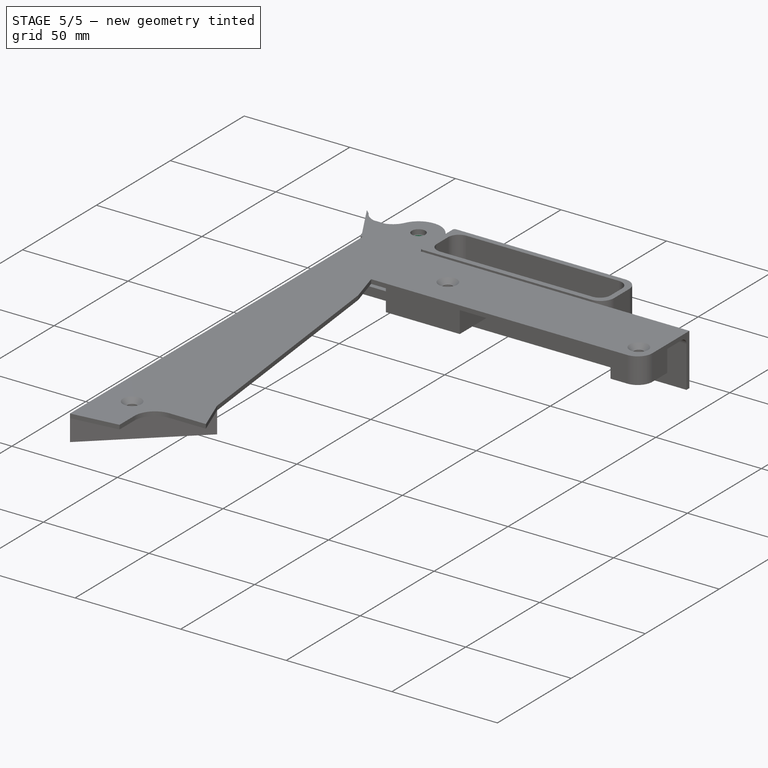
[diagram: stage 5 of 5 — iso view after this stage's code; geometry added in this stage tinted green]
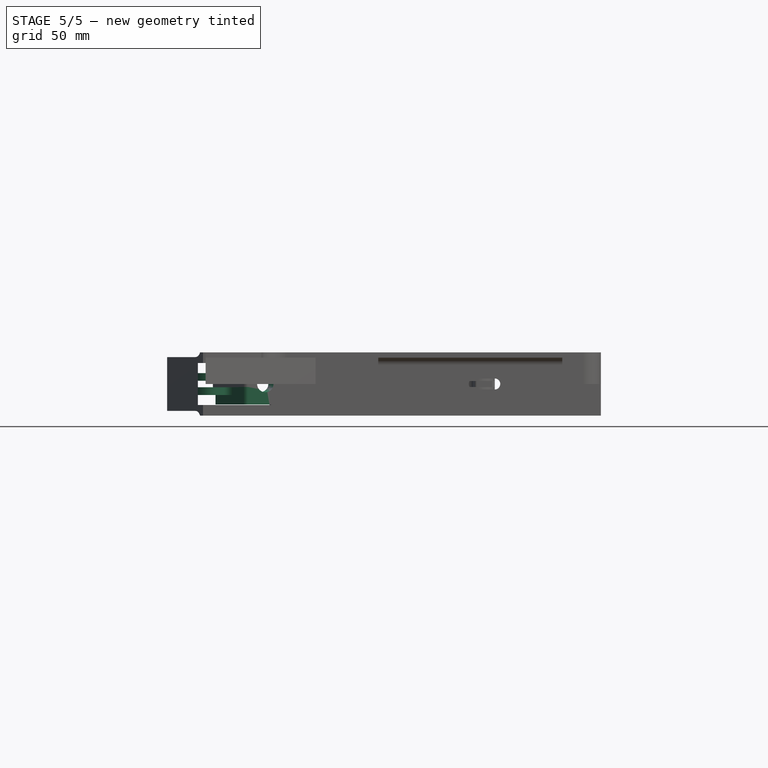
[diagram: stage 5 of 5 — front view after this stage's code; geometry added in this stage tinted green]
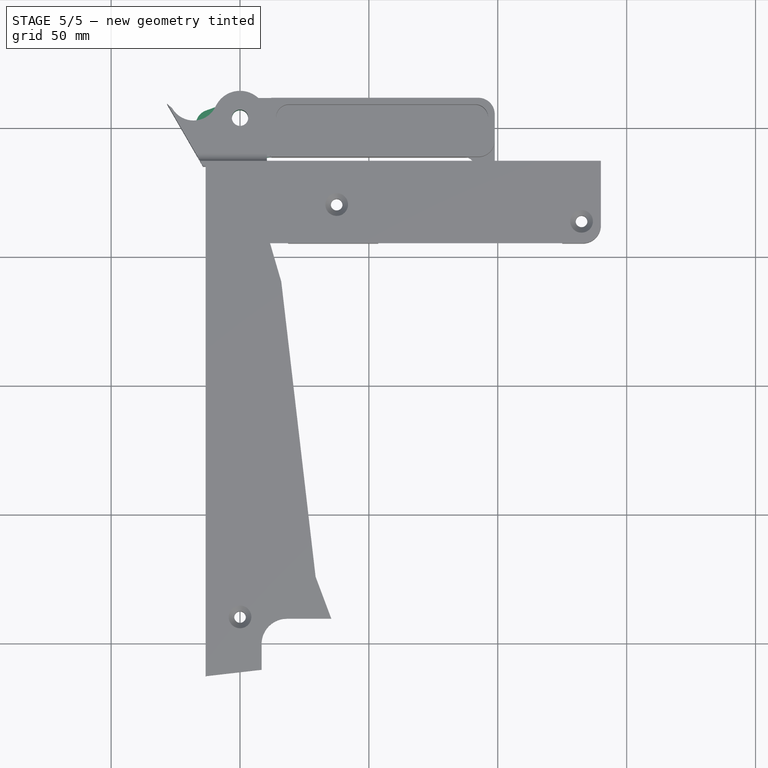
[diagram: stage 5 of 5 — top view after this stage's code; geometry added in this stage tinted green]
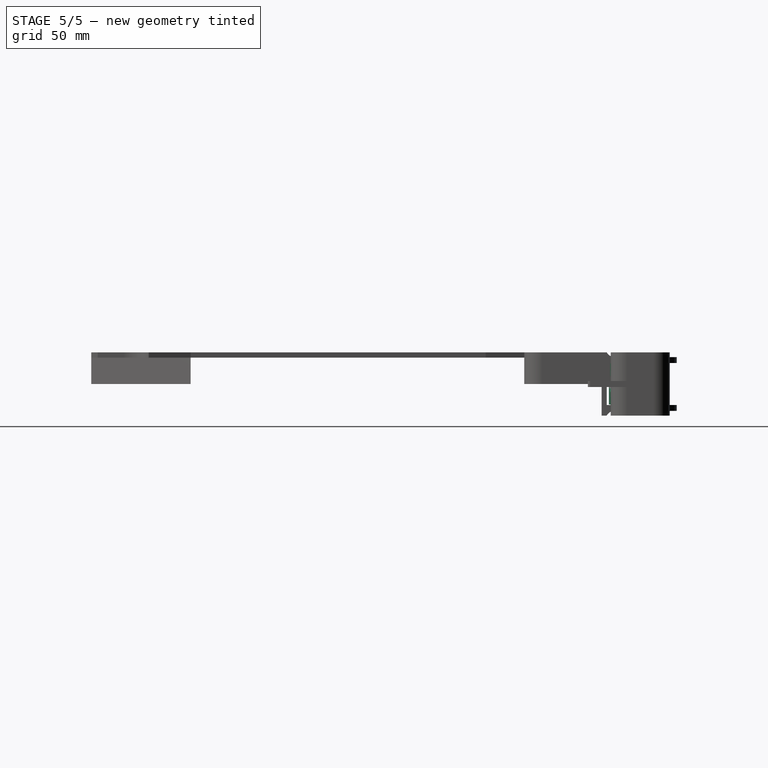
[diagram: stage 5 of 5 — right view after this stage's code; geometry added in this stage tinted green]
FEATURE [Sketcher::SketchObject] Sketch003
  ExternalGeometry = -> [Clone2D]
  FullyConstrained = true
  MapMode = 5
  Support = -> [XY_Plane]
  sketch-geometry (6):
    g0: LineSegment StartX=11.43 StartY=-11.43 StartZ=0 EndX=1.86877 EndY=-12.2665 EndZ=0
    g1: LineSegment StartX=1.86877 StartY=-12.2665 StartZ=0 EndX=-10.5411 EndY=7.59337 EndZ=0
    g2: LineSegment StartX=-10.5411 StartY=7.59337 StartZ=0 EndX=0 EndY=11.43 EndZ=0
    g3: LineSegment StartX=0 StartY=11.43 StartZ=0 EndX=11.43 EndY=11.43 EndZ=0
    g4: LineSegment StartX=11.43 StartY=11.43 StartZ=0 EndX=11.43 EndY=-11.43 EndZ=0
    g5: Circle CenterX=0 CenterY=3.73 CenterZ=0 NormalX=0 NormalY=0 NormalZ=1 AngleXU=0 Radius=3.175
  constraints (13):
    c: Coincident(g-3,g0)
    c: Coincident(g0,g-4)
    c: Coincident(g0,g1)
    c: PointOnObject(g1,g-5)
    c: Coincident(g1,g2)
    c: Coincident(g2,g-5)
    c: Coincident(g2,g3)
    c: Coincident(g3,g-3)
    c: Coincident(g3,g4)
    c: Coincident(g4,g0)
    c: Parallel(g1,g-4)
    c: Coincident(g5,g-6)
    c: Equal(g-6,g5)
FEATURE [PartDesign::Pad] Pad002  label="Pad_Pivot"
  BaseFeature = -> Pad001
  Direction = (0,0,1)
  Length = 15.875
  Length2 = 10
  Midplane = true
  Profile = -> Sketch003
  ReferenceAxis = -> Sketch003 [N_Axis]
  Type = 0
  expr: Length = <<data>>.pivot_thickness
FEATURE [Sketcher::SketchObject] Sketch004
  AttachmentOffset = pos=(0,0,1.243) rot=(0,0,1;0rad)
  ExternalGeometry = -> [Clone2D]
  FullyConstrained = true
  MapMode = 5
  Placement = pos=(0,0,1.243) rot=(0,0,1;0rad)
  Support = -> [XY_Plane]
  expr: .AttachmentOffset.Base.z = <<data>>.pin_thickness / 2 + 0.1
  sketch-geometry (6):
    g0: LineSegment StartX=-2.7526 StartY=-4.87076 StartZ=0 EndX=-10.5411 EndY=7.59337 EndZ=0
    g1: LineSegment StartX=-10.5411 StartY=7.59337 StartZ=0 EndX=-13.2461 EndY=6.60881 EndZ=0
    g2: ArcOfCircle CenterX=-11.194 CenterY=0.970651 CenterZ=0 NormalX=0 NormalY=0 NormalZ=1 AngleXU=0 Radius=6 StartAngle=1.91986 EndAngle=5.06145
    g3: LineSegment StartX=-9.14188 StartY=-4.66751 StartZ=0 EndX=-6.3228 EndY=-3.64144 EndZ=0
    g4: ArcOfCircle CenterX=-5.29674 CenterY=-6.46052 CenterZ=0 NormalX=0 NormalY=0 NormalZ=1 AngleXU=0 Radius=3 StartAngle=0.558505 EndAngle=1.91986
    g5: Circle CenterX=-12.1337 CenterY=0.62863 CenterZ=0 NormalX=0 NormalY=0 NormalZ=1 AngleXU=0 Radius=1.5
  constraints (12):
    c: Coincident(g0,g-6)
    c: Parallel(g0,g-3)
    c: Coincident(g0,g1)
    c: Coincident(g1,g-7)
    c: Tangent(g1,g2) = -1.5708
    c: Coincident(g2,g-4)
    c: Tangent(g2,g3) = -1.5708
    c: Tangent(g3,g4) = 1.5708
    c: Coincident(g4,g0)
    c: Coincident(g3,g-6)
    c: Coincident(g5,g-5)
    c: Equal(g-5,g5)
FEATURE [PartDesign::Pad] Pad003  label="Pad_springpivot"
  BaseFeature = -> Pad002
  Direction = (0,0,1)
  Length = 3
  Length2 = 10
  Profile = -> Sketch004
  ReferenceAxis = -> Sketch004 [N_Axis]
  Type = 0
  expr: Length = <<data>>.springpivot_thickness
FEATURE [PartDesign::Mirrored] Mirrored  label="Mirrored_2ndspringpivot"
  BaseFeature = -> Pad003
  MirrorPlane = -> XY_Plane
  Originals = -> [Pad003]
FEATURE [Sketcher::SketchObject] Sketch005
  FullyConstrained = true
  MapMode = 5
  Placement = pos=(1.07922,-12.3356,0) rot=(0.998099,0.043578,0.043578;1.5727rad)
  Support = -> [Mirrored]
  sketch-geometry (1):
    g0: Circle CenterX=8.75 CenterY=0 CenterZ=0 NormalX=0 NormalY=0 NormalZ=1 AngleXU=0 Radius=3.175
  constraints (3):
    c: PointOnObject(g0,g-1)
    c: Diameter(g0) = 6.35
    c: DistanceX(g0) = 8.75
FEATURE [PartDesign::Pocket] Pocket  label="removeBeforeFlightHole"
  BaseFeature = -> Mirrored
  Direction = (-0.0871557,0.996195,3e-16)
  Length = 5
  Length2 = 5
  Midplane = true
  Profile = -> Sketch005
  ReferenceAxis = -> Sketch005 [N_Axis]
  Type = 1
FEATURE [PartDesign::Fillet] Fillet  label="Fillet_springPivot"
  Base = -> Pocket [Edge50,Edge70,Edge38]
  BaseFeature = -> Pocket
  Radius = 2
  SupportTransform = false
  UseAllEdges = false
FEATURE [PartDesign::Fillet] Fillet001  label="Fillet_pin_bodyCorners"
  Base = -> Fillet [Edge151,Edge147,Edge101,Edge17,Edge155,Edge16]
  BaseFeature = -> Fillet
  Radius = 1
  SupportTransform = false
  UseAllEdges = false
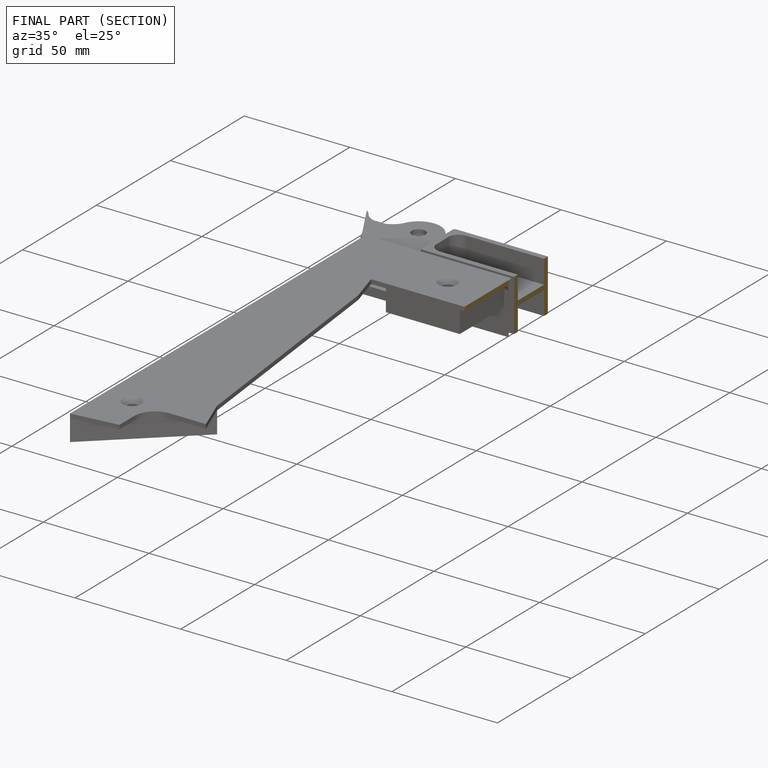
[diagram: finished part — half-section view (interior)]
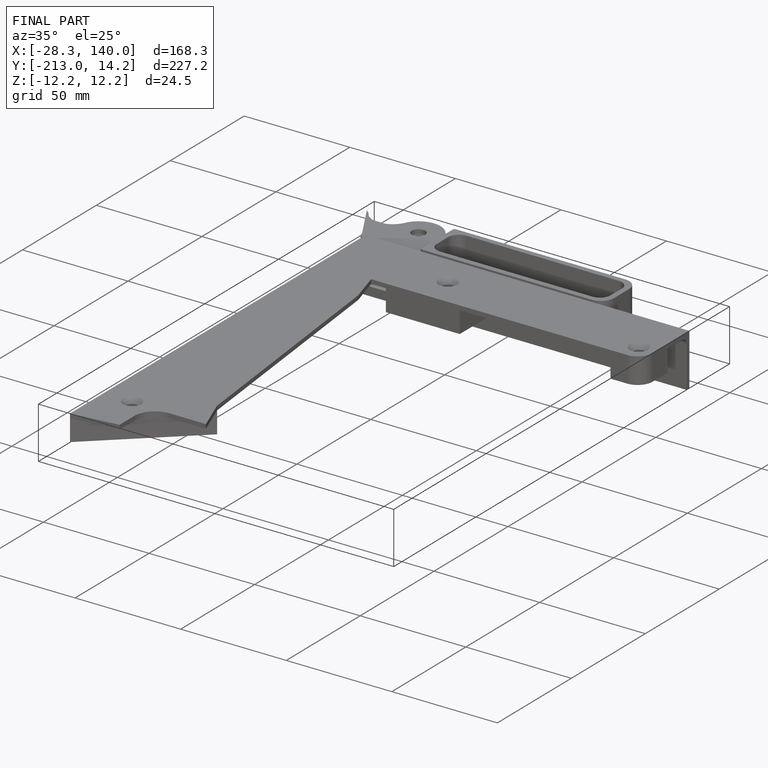
[diagram: finished part — iso view with bounding-box wireframe]
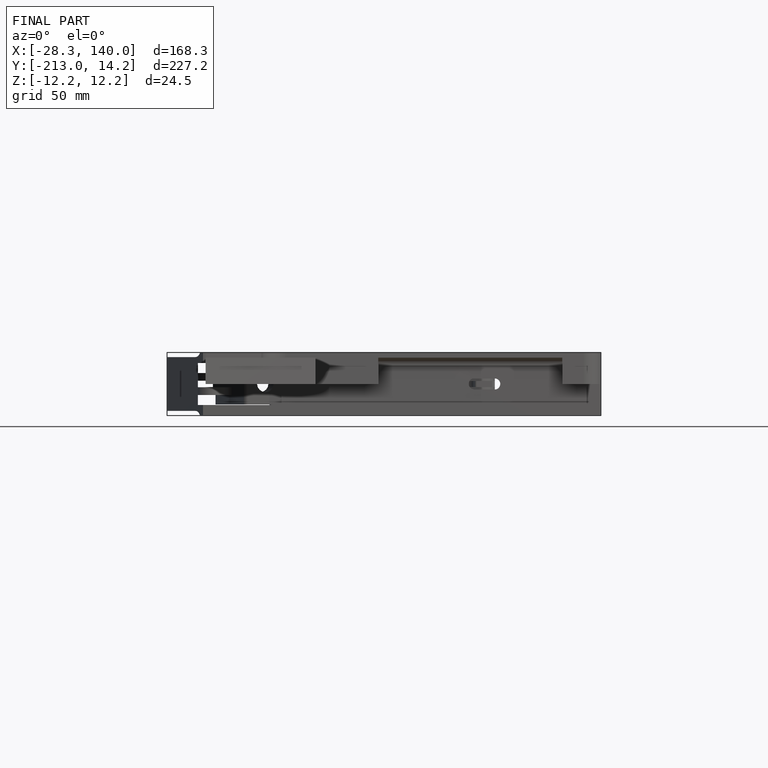
[diagram: finished part — front view with bounding-box wireframe]
